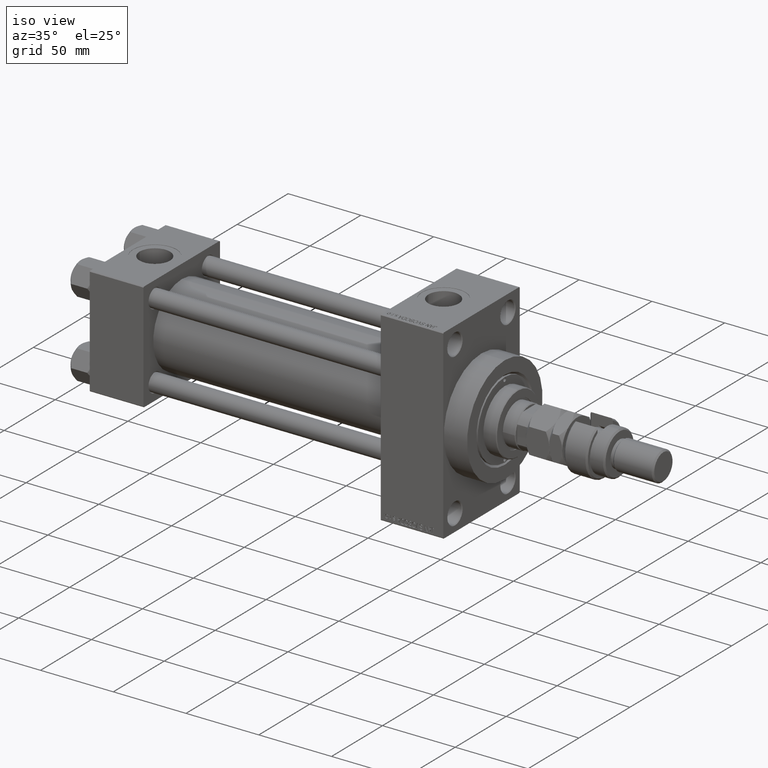
[diagram: clean part render]
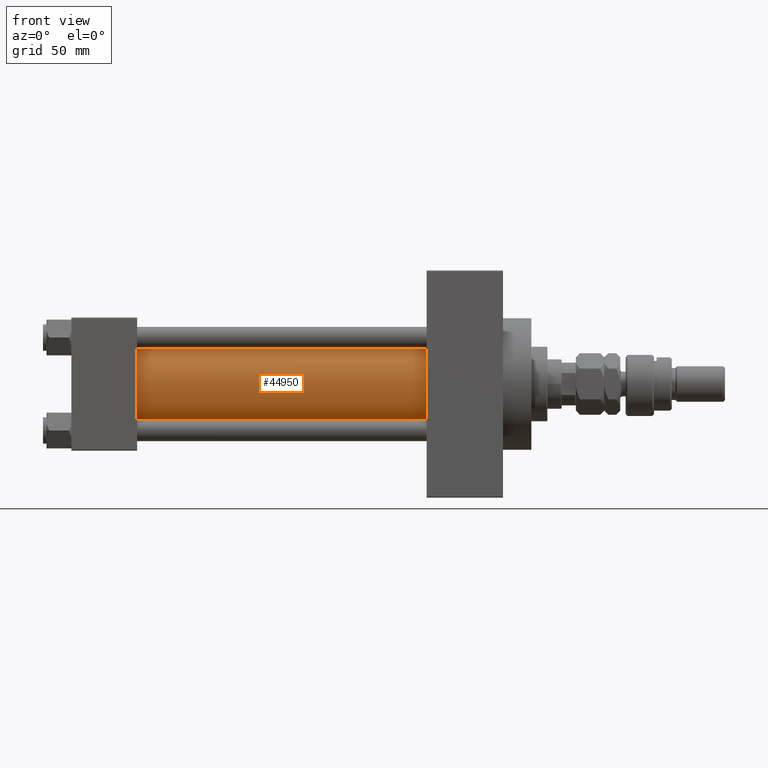
[diagram: tour spotlight — one face highlighted and labeled with its STEP entity id]
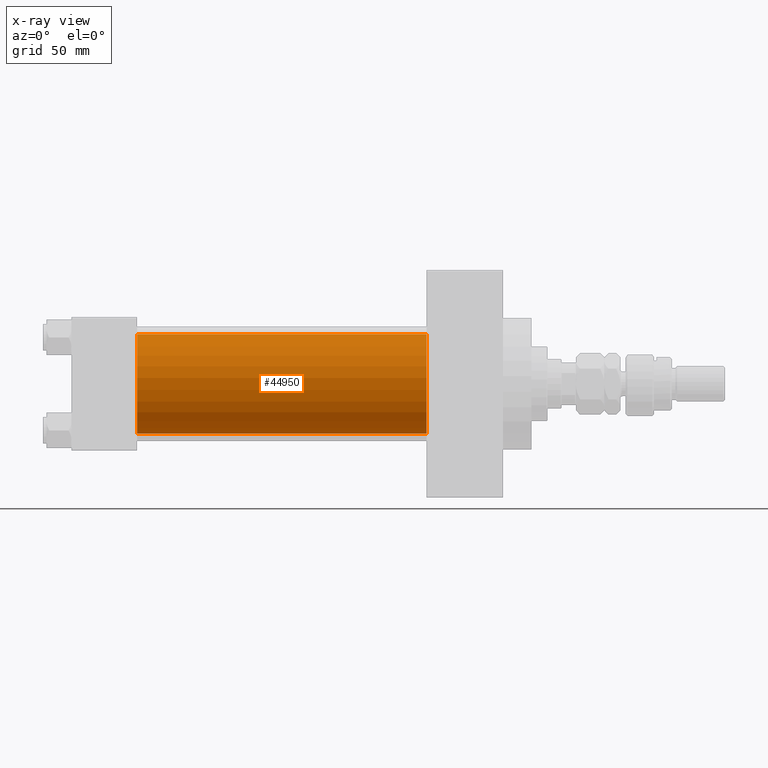
[diagram: x-ray of the same camera — body ghosted, this tour face saturated]
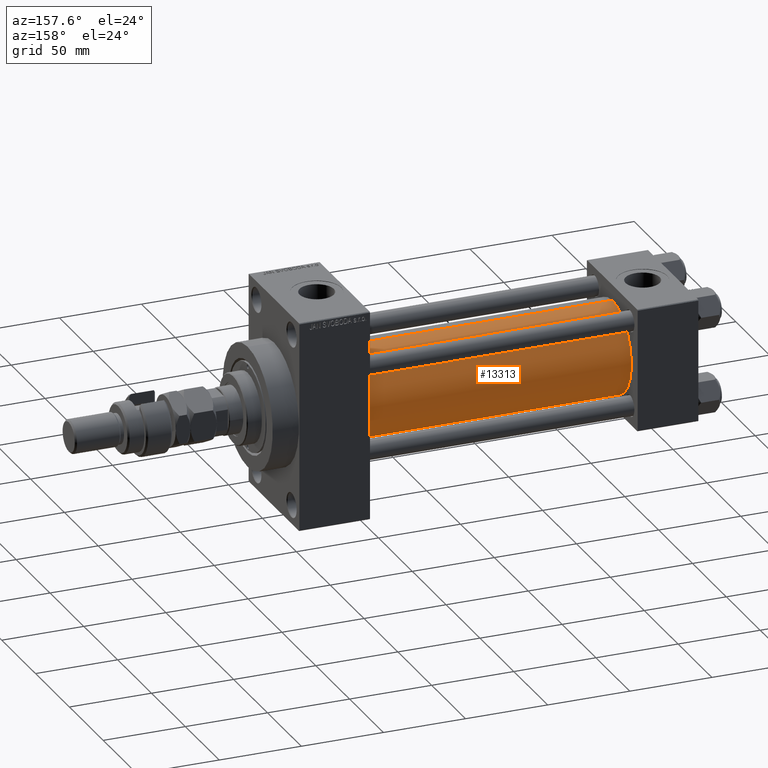
[diagram: tour spotlight — one face highlighted and labeled with its STEP entity id]
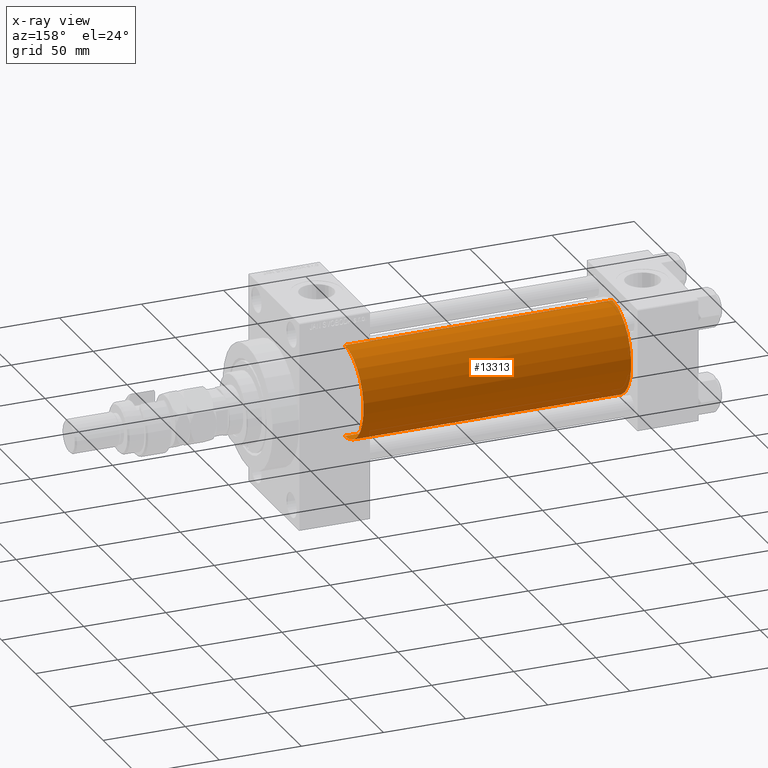
[diagram: x-ray of the same camera — body ghosted, this tour face saturated]
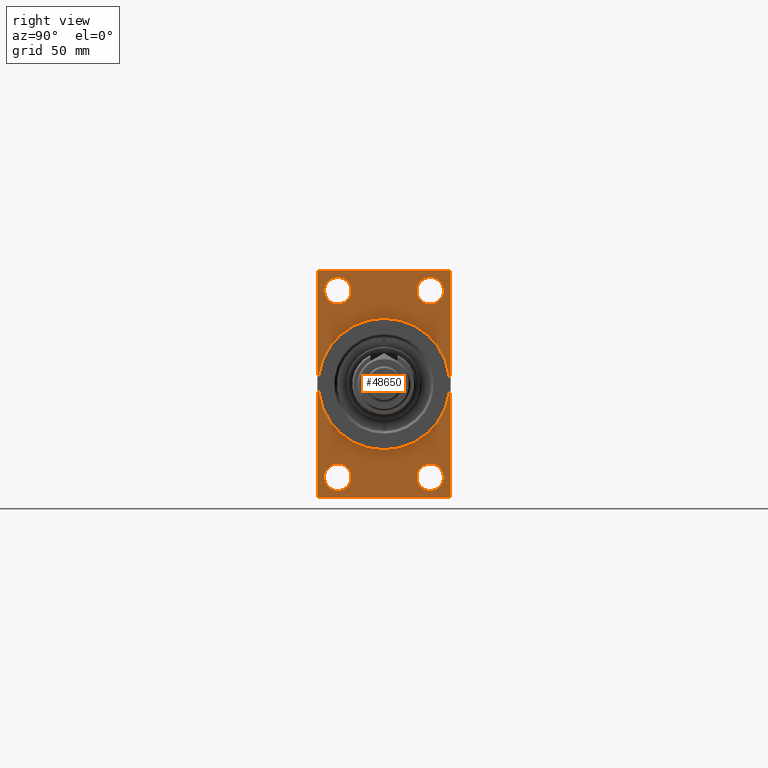
[diagram: tour spotlight — one face highlighted and labeled with its STEP entity id]
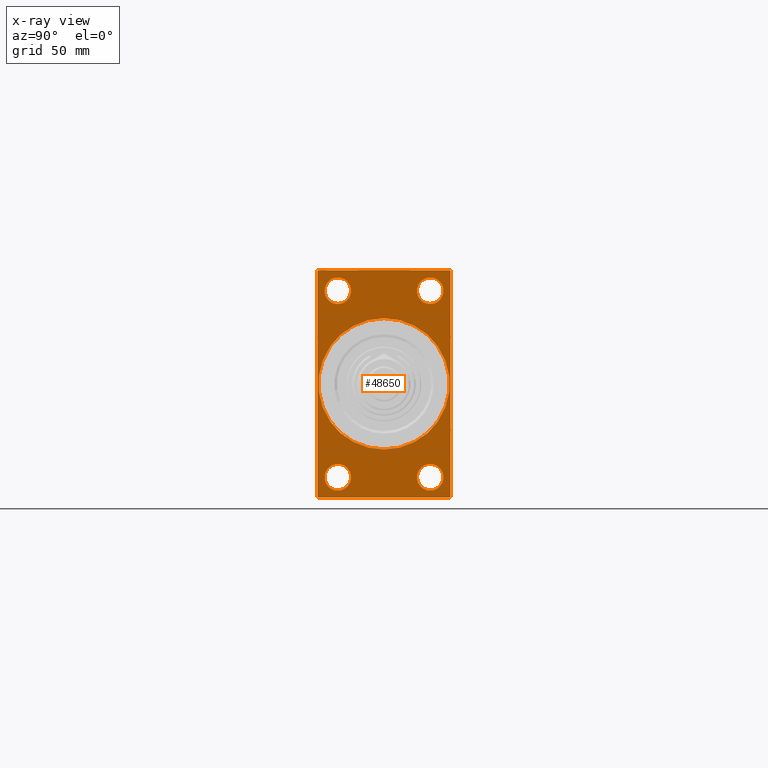
[diagram: x-ray of the same camera — body ghosted, this tour face saturated]
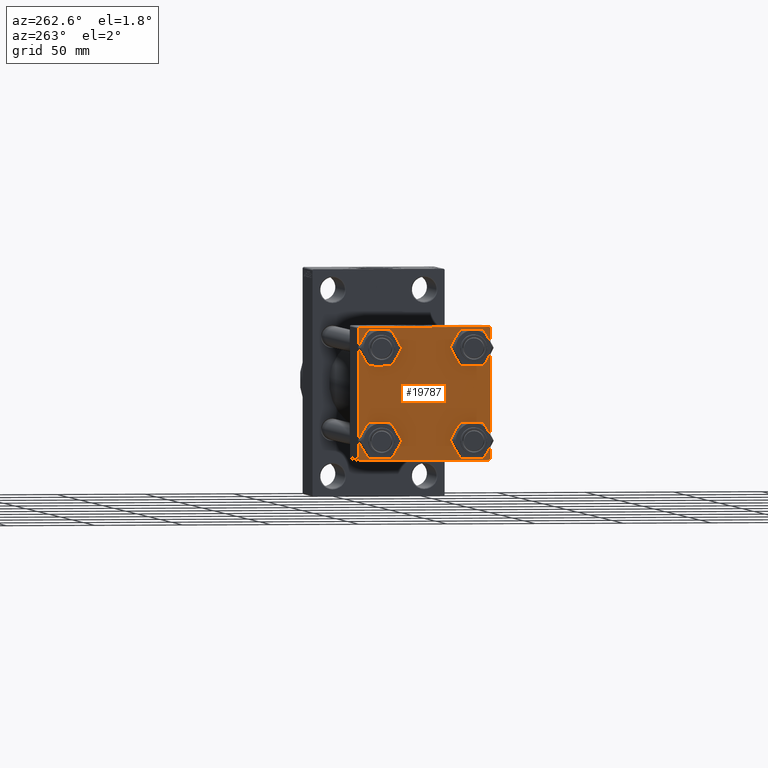
[diagram: tour spotlight — one face highlighted and labeled with its STEP entity id]
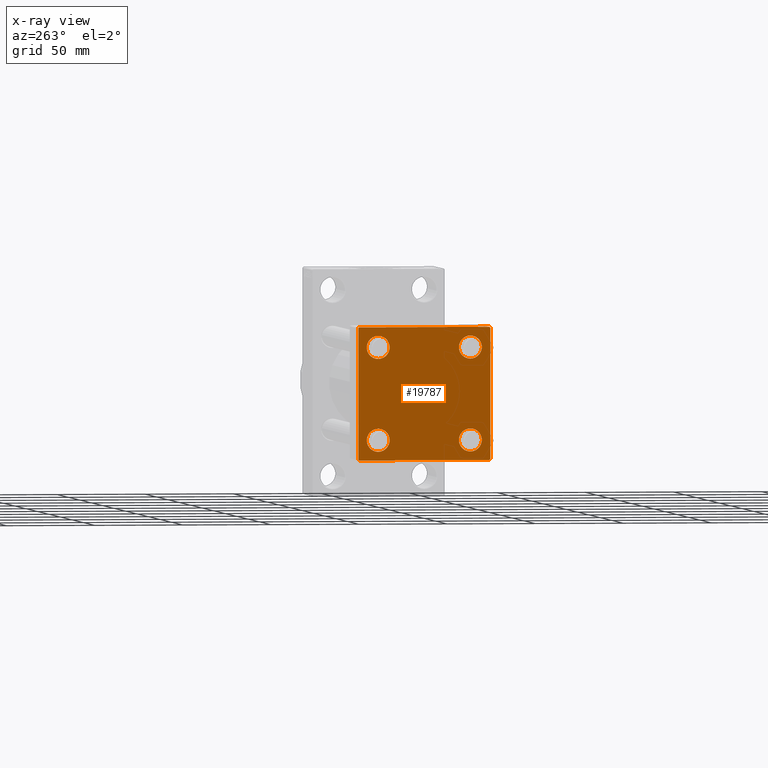
[diagram: x-ray of the same camera — body ghosted, this tour face saturated]
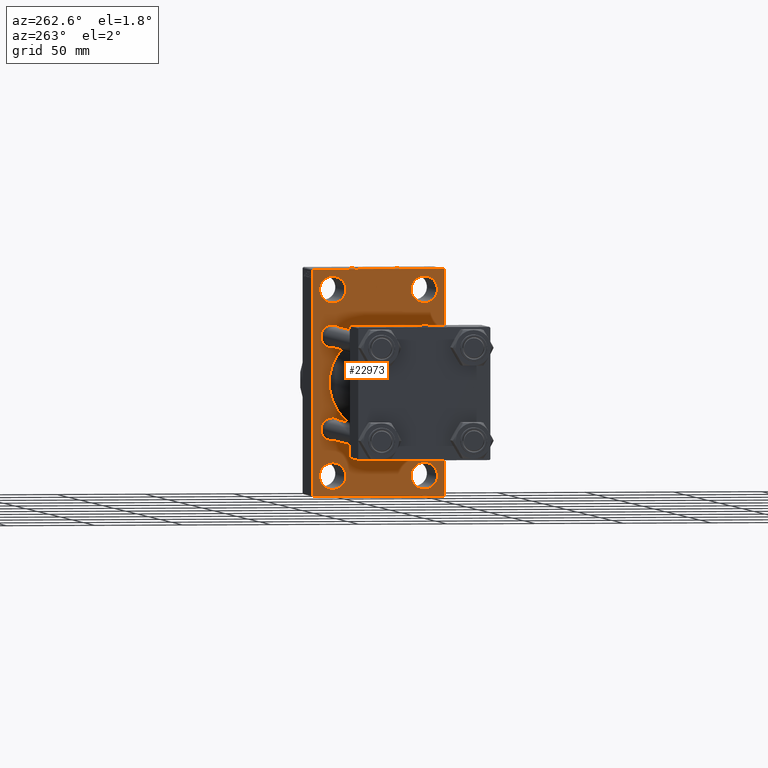
[diagram: tour spotlight — one face highlighted and labeled with its STEP entity id]
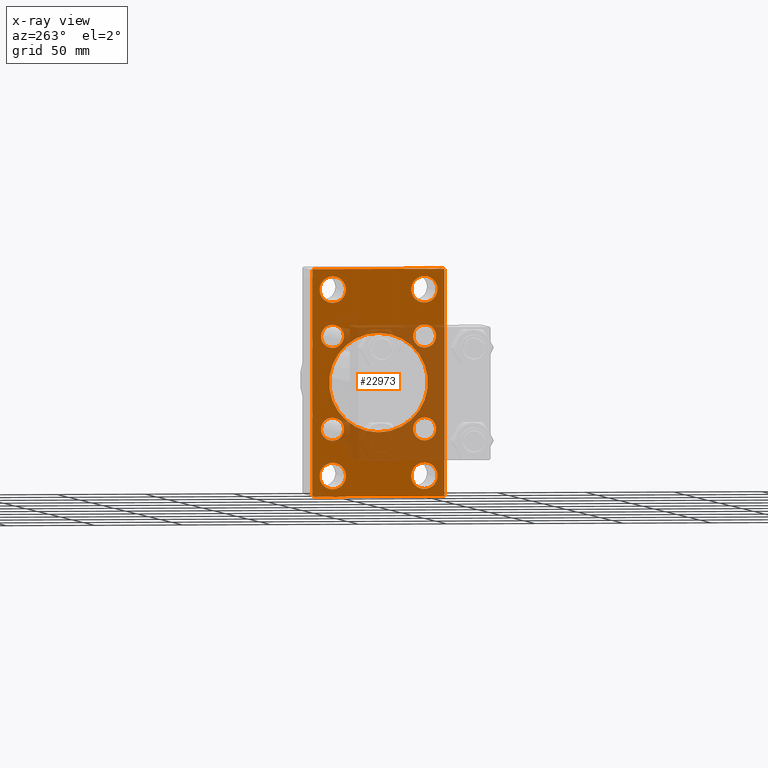
[diagram: x-ray of the same camera — body ghosted, this tour face saturated]
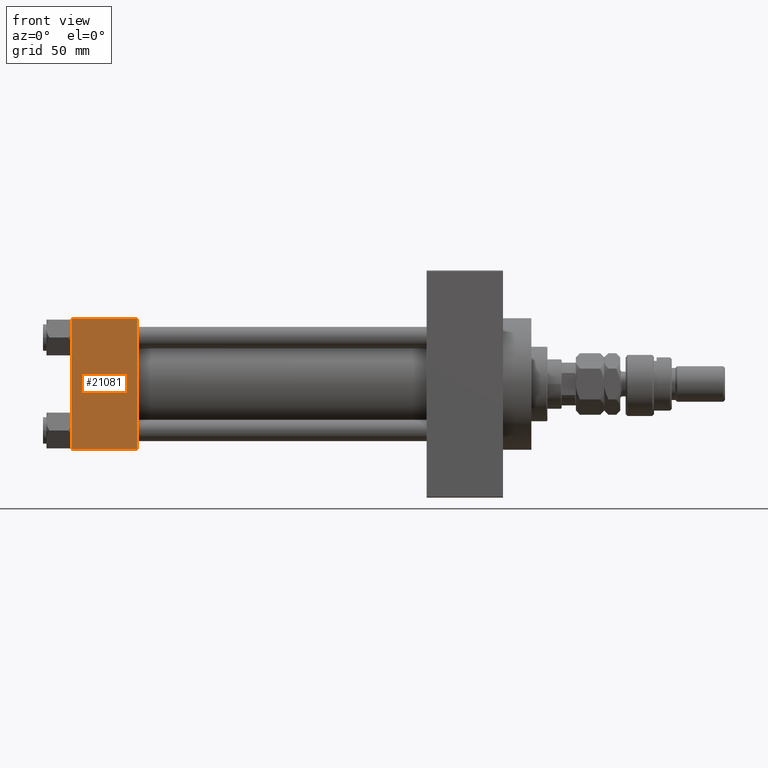
[diagram: tour spotlight — one face highlighted and labeled with its STEP entity id]
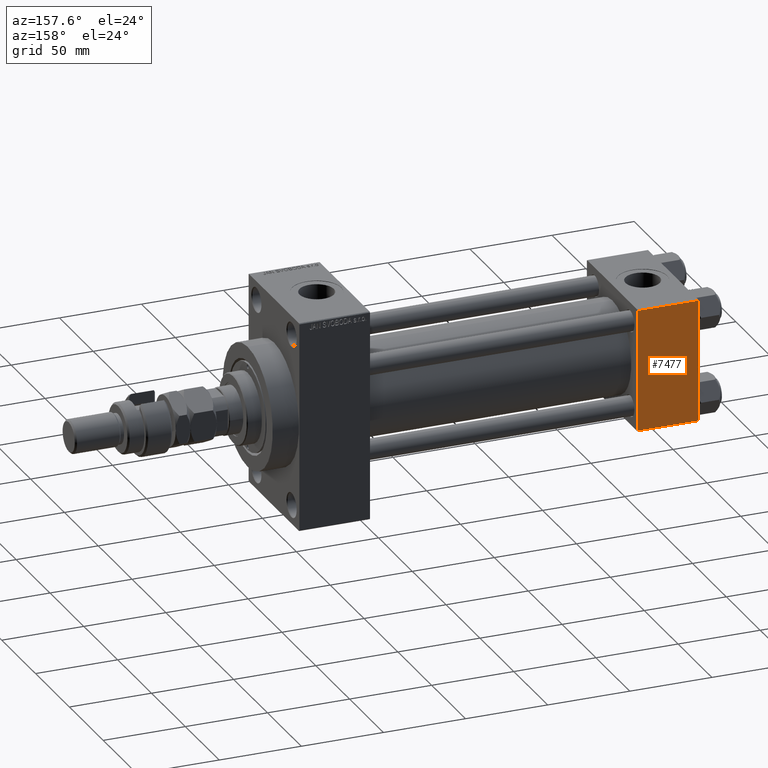
[diagram: tour spotlight — one face highlighted and labeled with its STEP entity id]
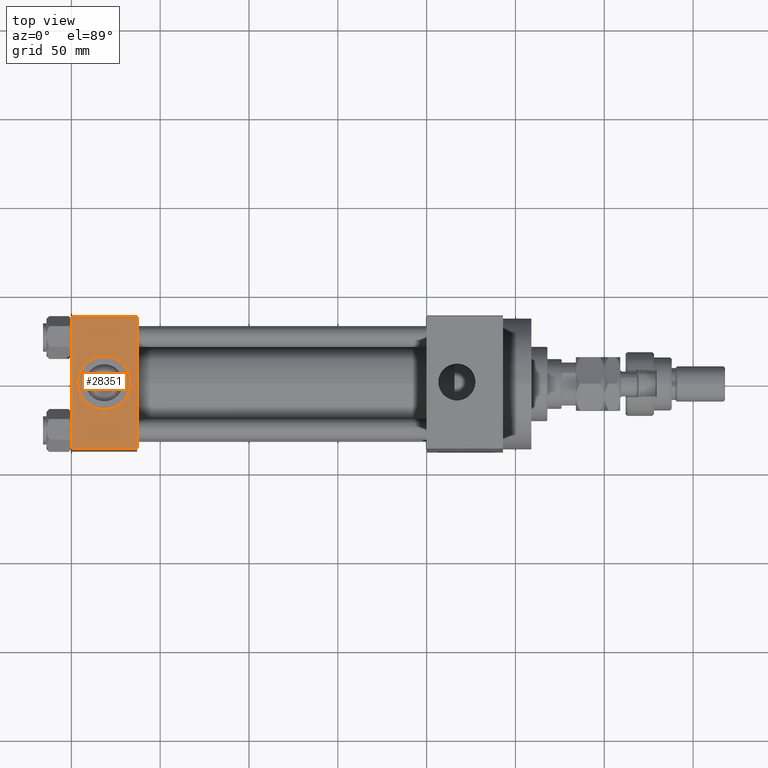
[diagram: tour spotlight — one face highlighted and labeled with its STEP entity id]
A machine part: a face-by-face anatomy tour. The part has 1196 B-rep faces; the first image is the clean iso view, then the 8 largest visible faces are spotlighted one at a time (largest first), each with its STEP entity span.

Face 1 — front view, entity #44950. An x-ray twin of the same camera follows (body ghosted, this face saturated) — the face is partly hidden behind the body. In plain terms, the highlighted cylindrical surface (partial cylindrical patch) has radius 28 mm, axis along (-1, -0, -0).
Definition (entity closure, byte-faithful):
#143 = DIRECTION ( 'NONE',  ( 0.000000000000000000, 0.000000000000000000, 1.000000000000000000 ) ) ;
#153 = CARTESIAN_POINT ( 'NONE',  ( 200.0000000000000000, -2.602085213965210642E-15, 28.00000000000000000 ) ) ;
#503 = AXIS2_PLACEMENT_3D ( 'NONE', #31374, #645, #143 ) ;
#645 = DIRECTION ( 'NONE',  ( 1.000000000000000000, -0.000000000000000000, 0.000000000000000000 ) ) ;
#1121 = EDGE_CURVE ( 'NONE', #32099, #12233, #23245, .T. ) ;
#4307 = CYLINDRICAL_SURFACE ( 'NONE', #25972, 28.00000000000000000 ) ;
#7414 = AXIS2_PLACEMENT_3D ( 'NONE', #24856, #16727, #44456 ) ;
#8608 = CARTESIAN_POINT ( 'NONE',  ( 200.0000000000000000, -2.602085213965210642E-15, 0.000000000000000000 ) ) ;
#9406 = ORIENTED_EDGE ( 'NONE', *, *, #41502, .F. ) ;
#9561 = LINE ( 'NONE', #44639, #12120 ) ;
#10765 = CARTESIAN_POINT ( 'NONE',  ( 200.0000000000000000, -2.602085213965210642E-15, 28.00000000000000000 ) ) ;
#12120 = VECTOR ( 'NONE', #25033, 1000.000000000000000 ) ;
#12233 = VERTEX_POINT ( 'NONE', #48418 ) ;
#14040 = CARTESIAN_POINT ( 'NONE',  ( 200.0000000000000000, 8.269258236473784371E-16, -28.00000000000000000 ) ) ;
#16727 = DIRECTION ( 'NONE',  ( 1.000000000000000000, 0.000000000000000000, 0.000000000000000000 ) ) ;
#19246 = DIRECTION ( 'NONE',  ( 0.000000000000000000, 0.000000000000000000, 1.000000000000000000 ) ) ;
#21167 = CIRCLE ( 'NONE', #7414, 28.00000000000000000 ) ;
#23245 = LINE ( 'NONE', #153, #49909 ) ;
#24856 = CARTESIAN_POINT ( 'NONE',  ( 200.0000000000000000, -2.602085213965210642E-15, 0.000000000000000000 ) ) ;
#25033 = DIRECTION ( 'NONE',  ( -1.000000000000000000, -0.000000000000000000, -0.000000000000000000 ) ) ;
#25972 = AXIS2_PLACEMENT_3D ( 'NONE', #8608, #38350, #19246 ) ;
#26927 = CARTESIAN_POINT ( 'NONE',  ( 37.00000000000000711, 8.269258236473784371E-16, -28.00000000000000000 ) ) ;
#27319 = DIRECTION ( 'NONE',  ( -1.000000000000000000, -0.000000000000000000, -0.000000000000000000 ) ) ;
#31297 = VERTEX_POINT ( 'NONE', #26927 ) ;
#31374 = CARTESIAN_POINT ( 'NONE',  ( 37.00000000000000711, -2.602085213965210642E-15, 0.000000000000000000 ) ) ;
#32099 = VERTEX_POINT ( 'NONE', #10765 ) ;
#34359 = EDGE_CURVE ( 'NONE', #12233, #31297, #40295, .T. ) ;
#38350 = DIRECTION ( 'NONE',  ( -1.000000000000000000, -0.000000000000000000, -0.000000000000000000 ) ) ;
#38632 = ORIENTED_EDGE ( 'NONE', *, *, #1121, .T. ) ;
#39640 = ORIENTED_EDGE ( 'NONE', *, *, #34359, .T. ) ;
#40295 = CIRCLE ( 'NONE', #503, 28.00000000000000000 ) ;
#41502 = EDGE_CURVE ( 'NONE', #49624, #31297, #9561, .T. ) ;
#41608 = ORIENTED_EDGE ( 'NONE', *, *, #49363, .F. ) ;
#42765 = EDGE_LOOP ( 'NONE', ( #9406, #41608, #38632, #39640 ) ) ;
#44456 = DIRECTION ( 'NONE',  ( 0.000000000000000000, 0.000000000000000000, -1.000000000000000000 ) ) ;
#44639 = CARTESIAN_POINT ( 'NONE',  ( 200.0000000000000000, 8.269258236473784371E-16, -28.00000000000000000 ) ) ;
#44950 = ADVANCED_FACE ( 'NONE', ( #50049 ), #4307, .T. ) ;
#48418 = CARTESIAN_POINT ( 'NONE',  ( 37.00000000000000711, -2.602085213965210642E-15, 28.00000000000000000 ) ) ;
#49363 = EDGE_CURVE ( 'NONE', #32099, #49624, #21167, .T. ) ;
#49624 = VERTEX_POINT ( 'NONE', #14040 ) ;
#49909 = VECTOR ( 'NONE', #27319, 1000.000000000000000 ) ;
#50049 = FACE_OUTER_BOUND ( 'NONE', #42765, .T. ) ;

Face 2 — auxiliary view, entity #13313. An x-ray twin of the same camera follows (body ghosted, this face saturated) — the face is partly hidden behind the body. In plain terms, the highlighted cylindrical surface (partial cylindrical patch) has radius 28 mm, axis along (-1, -0, -0).
Definition (entity closure, byte-faithful):
#153 = CARTESIAN_POINT ( 'NONE',  ( 200.0000000000000000, -2.602085213965210642E-15, 28.00000000000000000 ) ) ;
#1121 = EDGE_CURVE ( 'NONE', #32099, #12233, #23245, .T. ) ;
#2921 = DIRECTION ( 'NONE',  ( 0.000000000000000000, 0.000000000000000000, -1.000000000000000000 ) ) ;
#3556 = CARTESIAN_POINT ( 'NONE',  ( 37.00000000000000711, -2.602085213965210642E-15, 0.000000000000000000 ) ) ;
#7715 = EDGE_CURVE ( 'NONE', #49624, #32099, #10250, .T. ) ;
#9561 = LINE ( 'NONE', #44639, #12120 ) ;
#10042 = CARTESIAN_POINT ( 'NONE',  ( 200.0000000000000000, -2.602085213965210642E-15, 0.000000000000000000 ) ) ;
#10250 = CIRCLE ( 'NONE', #38664, 28.00000000000000000 ) ;
#10765 = CARTESIAN_POINT ( 'NONE',  ( 200.0000000000000000, -2.602085213965210642E-15, 28.00000000000000000 ) ) ;
#12120 = VECTOR ( 'NONE', #25033, 1000.000000000000000 ) ;
#12233 = VERTEX_POINT ( 'NONE', #48418 ) ;
#13313 = ADVANCED_FACE ( 'NONE', ( #44876 ), #13825, .T. ) ;
#13825 = CYLINDRICAL_SURFACE ( 'NONE', #46201, 28.00000000000000000 ) ;
#14040 = CARTESIAN_POINT ( 'NONE',  ( 200.0000000000000000, 8.269258236473784371E-16, -28.00000000000000000 ) ) ;
#19655 = CIRCLE ( 'NONE', #21276, 28.00000000000000000 ) ;
#21276 = AXIS2_PLACEMENT_3D ( 'NONE', #3556, #30716, #35289 ) ;
#23245 = LINE ( 'NONE', #153, #49909 ) ;
#23575 = EDGE_CURVE ( 'NONE', #31297, #12233, #19655, .T. ) ;
#25033 = DIRECTION ( 'NONE',  ( -1.000000000000000000, -0.000000000000000000, -0.000000000000000000 ) ) ;
#26757 = DIRECTION ( 'NONE',  ( 1.000000000000000000, 0.000000000000000000, 0.000000000000000000 ) ) ;
#26927 = CARTESIAN_POINT ( 'NONE',  ( 37.00000000000000711, 8.269258236473784371E-16, -28.00000000000000000 ) ) ;
#27319 = DIRECTION ( 'NONE',  ( -1.000000000000000000, -0.000000000000000000, -0.000000000000000000 ) ) ;
#28542 = EDGE_LOOP ( 'NONE', ( #32018, #36815, #45688, #47940 ) ) ;
#30716 = DIRECTION ( 'NONE',  ( 1.000000000000000000, -0.000000000000000000, 0.000000000000000000 ) ) ;
#31297 = VERTEX_POINT ( 'NONE', #26927 ) ;
#32018 = ORIENTED_EDGE ( 'NONE', *, *, #7715, .F. ) ;
#32099 = VERTEX_POINT ( 'NONE', #10765 ) ;
#35289 = DIRECTION ( 'NONE',  ( 0.000000000000000000, 0.000000000000000000, 1.000000000000000000 ) ) ;
#35548 = DIRECTION ( 'NONE',  ( -1.000000000000000000, -0.000000000000000000, -0.000000000000000000 ) ) ;
#36815 = ORIENTED_EDGE ( 'NONE', *, *, #41502, .T. ) ;
#37236 = DIRECTION ( 'NONE',  ( 0.000000000000000000, 0.000000000000000000, 1.000000000000000000 ) ) ;
#38664 = AXIS2_PLACEMENT_3D ( 'NONE', #42791, #26757, #2921 ) ;
#41502 = EDGE_CURVE ( 'NONE', #49624, #31297, #9561, .T. ) ;
#42791 = CARTESIAN_POINT ( 'NONE',  ( 200.0000000000000000, -2.602085213965210642E-15, 0.000000000000000000 ) ) ;
#44639 = CARTESIAN_POINT ( 'NONE',  ( 200.0000000000000000, 8.269258236473784371E-16, -28.00000000000000000 ) ) ;
#44876 = FACE_OUTER_BOUND ( 'NONE', #28542, .T. ) ;
#45688 = ORIENTED_EDGE ( 'NONE', *, *, #23575, .T. ) ;
#46201 = AXIS2_PLACEMENT_3D ( 'NONE', #10042, #35548, #37236 ) ;
#47940 = ORIENTED_EDGE ( 'NONE', *, *, #1121, .F. ) ;
#48418 = CARTESIAN_POINT ( 'NONE',  ( 37.00000000000000711, -2.602085213965210642E-15, 28.00000000000000000 ) ) ;
#49624 = VERTEX_POINT ( 'NONE', #14040 ) ;
#49909 = VECTOR ( 'NONE', #27319, 1000.000000000000000 ) ;

Face 3 — right view, entity #48650. An x-ray twin of the same camera follows (body ghosted, this face saturated) — the face is partly hidden behind the body. In plain terms, the highlighted planar face has unit normal (-1, 0, 0).
Definition (entity closure, byte-faithful):
#83 = CARTESIAN_POINT ( 'NONE',  ( 243.0000000000000000, -25.99999999999999645, -60.00000000000002842 ) ) ;
#409 = CARTESIAN_POINT ( 'NONE',  ( 243.0000000000000000, 0.000000000000000000, 0.000000000000000000 ) ) ;
#684 = CIRCLE ( 'NONE', #3912, 7.500000000000034639 ) ;
#943 = ORIENTED_EDGE ( 'NONE', *, *, #24145, .T. ) ;
#1343 = VECTOR ( 'NONE', #48449, 1000.000000000000000 ) ;
#1737 = EDGE_CURVE ( 'NONE', #8171, #4210, #6925, .T. ) ;
#2154 = VERTEX_POINT ( 'NONE', #21930 ) ;
#2880 = DIRECTION ( 'NONE',  ( -1.000000000000000000, 0.000000000000000000, -0.000000000000000000 ) ) ;
#3430 = VERTEX_POINT ( 'NONE', #16993 ) ;
#3458 = EDGE_CURVE ( 'NONE', #43724, #37003, #42593, .T. ) ;
#3563 = DIRECTION ( 'NONE',  ( -1.000000000000000000, 0.000000000000000000, -0.000000000000000000 ) ) ;
#3743 = ORIENTED_EDGE ( 'NONE', *, *, #12066, .T. ) ;
#3834 = DIRECTION ( 'NONE',  ( 0.000000000000000000, 0.000000000000000000, 1.000000000000000000 ) ) ;
#3912 = AXIS2_PLACEMENT_3D ( 'NONE', #26577, #34697, #22759 ) ;
#4210 = VERTEX_POINT ( 'NONE', #30665 ) ;
#4297 = CARTESIAN_POINT ( 'NONE',  ( 243.0000000000000000, 0.000000000000000000, 37.00000000000000000 ) ) ;
#5675 = VERTEX_POINT ( 'NONE', #83 ) ;
#6138 = CARTESIAN_POINT ( 'NONE',  ( 243.0000000000000000, 26.00000000000000000, -44.99999999999995737 ) ) ;
#6925 = CIRCLE ( 'NONE', #25548, 7.500000000000034639 ) ;
#7136 = DIRECTION ( 'NONE',  ( -0.000000000000000000, 0.7071067811865574537, 0.7071067811865376918 ) ) ;
#7162 = CIRCLE ( 'NONE', #32327, 7.500000000000034639 ) ;
#7249 = CIRCLE ( 'NONE', #16147, 7.500000000000034639 ) ;
#7613 = CARTESIAN_POINT ( 'NONE',  ( 243.0000000000000000, -25.99999999999999645, 52.50000000000000000 ) ) ;
#7831 = DIRECTION ( 'NONE',  ( 0.000000000000000000, 0.000000000000000000, 1.000000000000000000 ) ) ;
#8171 = VERTEX_POINT ( 'NONE', #33192 ) ;
#8274 = FACE_BOUND ( 'NONE', #31237, .T. ) ;
#8454 = ORIENTED_EDGE ( 'NONE', *, *, #18856, .F. ) ;
#9001 = ORIENTED_EDGE ( 'NONE', *, *, #13744, .T. ) ;
#9518 = CARTESIAN_POINT ( 'NONE',  ( 243.0000000000000000, 37.49999999999999289, -63.50000000000007105 ) ) ;
#9788 = AXIS2_PLACEMENT_3D ( 'NONE', #7613, #3563, #34023 ) ;
#9806 = VECTOR ( 'NONE', #37366, 1000.000000000000000 ) ;
#9887 = CARTESIAN_POINT ( 'NONE',  ( 243.0000000000000000, -37.49999999999999289, 63.50000000000000000 ) ) ;
#10691 = CARTESIAN_POINT ( 'NONE',  ( 243.0000000000000000, 37.49999999999999289, -63.50000000000007105 ) ) ;
#10866 = EDGE_CURVE ( 'NONE', #3430, #48164, #39574, .T. ) ;
#11498 = CARTESIAN_POINT ( 'NONE',  ( 243.0000000000000000, -37.00000000000002132, -64.00000000000001421 ) ) ;
#11596 = LINE ( 'NONE', #35493, #28488 ) ;
#12066 = EDGE_CURVE ( 'NONE', #48164, #3430, #684, .T. ) ;
#12386 = CARTESIAN_POINT ( 'NONE',  ( 243.0000000000000000, -37.00000000000002132, -64.00000000000001421 ) ) ;
#12725 = CARTESIAN_POINT ( 'NONE',  ( 243.0000000000000000, -25.99999999999999645, -44.99999999999995737 ) ) ;
#13744 = EDGE_CURVE ( 'NONE', #32657, #5675, #7249, .T. ) ;
#14833 = VERTEX_POINT ( 'NONE', #17496 ) ;
#15358 = FACE_BOUND ( 'NONE', #45716, .T. ) ;
#15912 = CARTESIAN_POINT ( 'NONE',  ( 243.0000000000000000, 0.000000000000000000, 0.000000000000000000 ) ) ;
#16147 = AXIS2_PLACEMENT_3D ( 'NONE', #50116, #30534, #33584 ) ;
#16838 = EDGE_LOOP ( 'NONE', ( #36715, #3743 ) ) ;
#16993 = CARTESIAN_POINT ( 'NONE',  ( 243.0000000000000000, 26.00000000000000000, -60.00000000000002842 ) ) ;
#17241 = CARTESIAN_POINT ( 'NONE',  ( 243.0000000000000000, 26.00000000000000000, 44.99999999999995737 ) ) ;
#17286 = DIRECTION ( 'NONE',  ( 0.000000000000000000, -1.000000000000000000, -1.850371707708594563E-16 ) ) ;
#17496 = CARTESIAN_POINT ( 'NONE',  ( 243.0000000000000000, -37.49999999999999289, -63.50000000000002842 ) ) ;
#17688 = CARTESIAN_POINT ( 'NONE',  ( 243.0000000000000000, 37.00000000000000000, 63.99999999999998579 ) ) ;
#17786 = VERTEX_POINT ( 'NONE', #17688 ) ;
#18190 = LINE ( 'NONE', #34715, #25983 ) ;
#18318 = DIRECTION ( 'NONE',  ( 0.000000000000000000, 0.000000000000000000, 1.000000000000000000 ) ) ;
#18385 = EDGE_CURVE ( 'NONE', #4210, #8171, #27625, .T. ) ;
#18692 = AXIS2_PLACEMENT_3D ( 'NONE', #409, #23755, #43357 ) ;
#18856 = EDGE_CURVE ( 'NONE', #2154, #35432, #18190, .T. ) ;
#19379 = ORIENTED_EDGE ( 'NONE', *, *, #34171, .T. ) ;
#19767 = ORIENTED_EDGE ( 'NONE', *, *, #45993, .T. ) ;
#20430 = VERTEX_POINT ( 'NONE', #46487 ) ;
#21357 = DIRECTION ( 'NONE',  ( -1.000000000000000000, 0.000000000000000000, -0.000000000000000000 ) ) ;
#21822 = LINE ( 'NONE', #22331, #9806 ) ;
#21930 = CARTESIAN_POINT ( 'NONE',  ( 243.0000000000000000, 37.50000000000000000, 63.49999999999998579 ) ) ;
#22331 = CARTESIAN_POINT ( 'NONE',  ( 243.0000000000000000, 37.50000000000000000, 63.99999999999998579 ) ) ;
#22759 = DIRECTION ( 'NONE',  ( 0.000000000000000000, 0.000000000000000000, 1.000000000000000000 ) ) ;
#23030 = CIRCLE ( 'NONE', #31169, 7.500000000000034639 ) ;
#23048 = CARTESIAN_POINT ( 'NONE',  ( 243.0000000000000000, -25.99999999999999645, -52.49999999999999289 ) ) ;
#23491 = DIRECTION ( 'NONE',  ( -1.000000000000000000, 0.000000000000000000, -0.000000000000000000 ) ) ;
#23755 = DIRECTION ( 'NONE',  ( -1.000000000000000000, 0.000000000000000000, -0.000000000000000000 ) ) ;
#24145 = EDGE_CURVE ( 'NONE', #20430, #35135, #37680, .T. ) ;
#24339 = DIRECTION ( 'NONE',  ( 0.000000000000000000, 0.7071067811865376918, -0.7071067811865573427 ) ) ;
#24585 = LINE ( 'NONE', #12386, #43761 ) ;
#24811 = ORIENTED_EDGE ( 'NONE', *, *, #3458, .F. ) ;
#25320 = ORIENTED_EDGE ( 'NONE', *, *, #45691, .T. ) ;
#25548 = AXIS2_PLACEMENT_3D ( 'NONE', #30941, #21357, #36895 ) ;
#25619 = DIRECTION ( 'NONE',  ( 0.000000000000000000, 0.000000000000000000, -1.000000000000000000 ) ) ;
#25979 = EDGE_CURVE ( 'NONE', #36172, #35222, #23030, .T. ) ;
#25983 = VECTOR ( 'NONE', #41876, 1000.000000000000000 ) ;
#26550 = CARTESIAN_POINT ( 'NONE',  ( 243.0000000000000000, 26.00000000000000000, 52.49999999999999289 ) ) ;
#26577 = CARTESIAN_POINT ( 'NONE',  ( 243.0000000000000000, 26.00000000000000000, -52.49999999999999289 ) ) ;
#27576 = FACE_BOUND ( 'NONE', #16838, .T. ) ;
#27625 = CIRCLE ( 'NONE', #9788, 7.500000000000034639 ) ;
#27687 = VECTOR ( 'NONE', #7136, 999.9999999999998863 ) ;
#27771 = EDGE_LOOP ( 'NONE', ( #42906, #9001 ) ) ;
#28488 = VECTOR ( 'NONE', #34461, 1000.000000000000114 ) ;
#28500 = LINE ( 'NONE', #32067, #44512 ) ;
#29027 = AXIS2_PLACEMENT_3D ( 'NONE', #48871, #2880, #18318 ) ;
#29149 = ORIENTED_EDGE ( 'NONE', *, *, #18385, .T. ) ;
#29186 = EDGE_LOOP ( 'NONE', ( #19379, #33845, #34113, #34287, #8454, #19767, #25320, #943 ) ) ;
#29609 = AXIS2_PLACEMENT_3D ( 'NONE', #23048, #42654, #7831 ) ;
#30534 = DIRECTION ( 'NONE',  ( -1.000000000000000000, 0.000000000000000000, -0.000000000000000000 ) ) ;
#30665 = CARTESIAN_POINT ( 'NONE',  ( 243.0000000000000000, -25.99999999999999645, 60.00000000000003553 ) ) ;
#30765 = CIRCLE ( 'NONE', #49463, 37.00000000000000000 ) ;
#30941 = CARTESIAN_POINT ( 'NONE',  ( 243.0000000000000000, -25.99999999999999645, 52.50000000000000000 ) ) ;
#31169 = AXIS2_PLACEMENT_3D ( 'NONE', #26550, #23491, #39274 ) ;
#31237 = EDGE_LOOP ( 'NONE', ( #44959, #34856 ) ) ;
#31613 = EDGE_CURVE ( 'NONE', #5675, #32657, #45056, .T. ) ;
#32067 = CARTESIAN_POINT ( 'NONE',  ( 243.0000000000000000, 37.49999999999999289, -64.00000000000000000 ) ) ;
#32327 = AXIS2_PLACEMENT_3D ( 'NONE', #46516, #38644, #3834 ) ;
#32657 = VERTEX_POINT ( 'NONE', #12725 ) ;
#33192 = CARTESIAN_POINT ( 'NONE',  ( 243.0000000000000000, -25.99999999999999645, 44.99999999999996447 ) ) ;
#33584 = DIRECTION ( 'NONE',  ( 0.000000000000000000, 0.000000000000000000, 1.000000000000000000 ) ) ;
#33845 = ORIENTED_EDGE ( 'NONE', *, *, #40406, .T. ) ;
#34023 = DIRECTION ( 'NONE',  ( 0.000000000000000000, 0.000000000000000000, 1.000000000000000000 ) ) ;
#34113 = ORIENTED_EDGE ( 'NONE', *, *, #38217, .F. ) ;
#34171 = EDGE_CURVE ( 'NONE', #35135, #14833, #44402, .T. ) ;
#34287 = ORIENTED_EDGE ( 'NONE', *, *, #49924, .T. ) ;
#34461 = DIRECTION ( 'NONE',  ( 0.000000000000000000, -0.7071067811865474617, 0.7071067811865474617 ) ) ;
#34697 = DIRECTION ( 'NONE',  ( -1.000000000000000000, 0.000000000000000000, -0.000000000000000000 ) ) ;
#34715 = CARTESIAN_POINT ( 'NONE',  ( 243.0000000000000000, 37.50000000000000000, 63.99999999999998579 ) ) ;
#34798 = LINE ( 'NONE', #10691, #27687 ) ;
#34856 = ORIENTED_EDGE ( 'NONE', *, *, #42188, .T. ) ;
#35135 = VERTEX_POINT ( 'NONE', #9887 ) ;
#35197 = FACE_OUTER_BOUND ( 'NONE', #29186, .T. ) ;
#35222 = VERTEX_POINT ( 'NONE', #46915 ) ;
#35432 = VERTEX_POINT ( 'NONE', #9518 ) ;
#35493 = CARTESIAN_POINT ( 'NONE',  ( 243.0000000000000000, 37.00000000000000000, 63.99999999999998579 ) ) ;
#35766 = CARTESIAN_POINT ( 'NONE',  ( 243.0000000000000000, -37.49999999999999289, 63.99999999999997158 ) ) ;
#36172 = VERTEX_POINT ( 'NONE', #17241 ) ;
#36326 = CARTESIAN_POINT ( 'NONE',  ( 243.0000000000000000, 0.000000000000000000, 0.000000000000000000 ) ) ;
#36715 = ORIENTED_EDGE ( 'NONE', *, *, #10866, .T. ) ;
#36772 = VECTOR ( 'NONE', #46058, 1000.000000000000000 ) ;
#36895 = DIRECTION ( 'NONE',  ( 0.000000000000000000, 0.000000000000000000, 1.000000000000000000 ) ) ;
#37003 = VERTEX_POINT ( 'NONE', #4297 ) ;
#37366 = DIRECTION ( 'NONE',  ( 0.000000000000000000, -1.000000000000000000, -1.850371707708594563E-16 ) ) ;
#37484 = ORIENTED_EDGE ( 'NONE', *, *, #41306, .F. ) ;
#37680 = LINE ( 'NONE', #37928, #36772 ) ;
#37928 = CARTESIAN_POINT ( 'NONE',  ( 243.0000000000000000, -37.49999999999999289, 63.50000000000000000 ) ) ;
#38217 = EDGE_CURVE ( 'NONE', #47546, #42592, #28500, .T. ) ;
#38644 = DIRECTION ( 'NONE',  ( -1.000000000000000000, 0.000000000000000000, -0.000000000000000000 ) ) ;
#38662 = CARTESIAN_POINT ( 'NONE',  ( 243.0000000000000000, 4.531193156845206793E-15, -37.00000000000000000 ) ) ;
#39032 = FACE_BOUND ( 'NONE', #27771, .T. ) ;
#39079 = DIRECTION ( 'NONE',  ( 0.000000000000000000, 0.000000000000000000, -1.000000000000000000 ) ) ;
#39274 = DIRECTION ( 'NONE',  ( 0.000000000000000000, 0.000000000000000000, 1.000000000000000000 ) ) ;
#39287 = FACE_BOUND ( 'NONE', #43007, .T. ) ;
#39574 = CIRCLE ( 'NONE', #29027, 7.500000000000034639 ) ;
#40406 = EDGE_CURVE ( 'NONE', #14833, #42592, #24585, .T. ) ;
#41306 = EDGE_CURVE ( 'NONE', #37003, #43724, #30765, .T. ) ;
#41876 = DIRECTION ( 'NONE',  ( 0.000000000000000000, -5.421010862427522170E-17, -1.000000000000000000 ) ) ;
#42188 = EDGE_CURVE ( 'NONE', #35222, #36172, #7162, .T. ) ;
#42592 = VERTEX_POINT ( 'NONE', #11498 ) ;
#42593 = CIRCLE ( 'NONE', #48242, 37.00000000000000000 ) ;
#42598 = PLANE ( 'NONE',  #18692 ) ;
#42654 = DIRECTION ( 'NONE',  ( -1.000000000000000000, 0.000000000000000000, -0.000000000000000000 ) ) ;
#42906 = ORIENTED_EDGE ( 'NONE', *, *, #31613, .T. ) ;
#43007 = EDGE_LOOP ( 'NONE', ( #44717, #29149 ) ) ;
#43357 = DIRECTION ( 'NONE',  ( -0.000000000000000000, 0.000000000000000000, 1.000000000000000000 ) ) ;
#43724 = VERTEX_POINT ( 'NONE', #38662 ) ;
#43761 = VECTOR ( 'NONE', #24339, 1000.000000000000114 ) ;
#44227 = DIRECTION ( 'NONE',  ( 1.000000000000000000, 0.000000000000000000, 0.000000000000000000 ) ) ;
#44402 = LINE ( 'NONE', #35766, #1343 ) ;
#44512 = VECTOR ( 'NONE', #17286, 1000.000000000000000 ) ;
#44717 = ORIENTED_EDGE ( 'NONE', *, *, #1737, .T. ) ;
#44959 = ORIENTED_EDGE ( 'NONE', *, *, #25979, .T. ) ;
#45056 = CIRCLE ( 'NONE', #29609, 7.500000000000034639 ) ;
#45691 = EDGE_CURVE ( 'NONE', #17786, #20430, #21822, .T. ) ;
#45716 = EDGE_LOOP ( 'NONE', ( #37484, #24811 ) ) ;
#45993 = EDGE_CURVE ( 'NONE', #2154, #17786, #11596, .T. ) ;
#46058 = DIRECTION ( 'NONE',  ( -0.000000000000000000, -0.7071067811865524577, -0.7071067811865426878 ) ) ;
#46487 = CARTESIAN_POINT ( 'NONE',  ( 243.0000000000000000, -37.00000000000001421, 63.99999999999997158 ) ) ;
#46516 = CARTESIAN_POINT ( 'NONE',  ( 243.0000000000000000, 26.00000000000000000, 52.49999999999999289 ) ) ;
#46915 = CARTESIAN_POINT ( 'NONE',  ( 243.0000000000000000, 26.00000000000000000, 60.00000000000002842 ) ) ;
#47213 = DIRECTION ( 'NONE',  ( 1.000000000000000000, 0.000000000000000000, 0.000000000000000000 ) ) ;
#47465 = CARTESIAN_POINT ( 'NONE',  ( 243.0000000000000000, 37.00000000000004974, -64.00000000000000000 ) ) ;
#47546 = VERTEX_POINT ( 'NONE', #47465 ) ;
#48164 = VERTEX_POINT ( 'NONE', #6138 ) ;
#48242 = AXIS2_PLACEMENT_3D ( 'NONE', #36326, #44227, #25619 ) ;
#48449 = DIRECTION ( 'NONE',  ( 0.000000000000000000, 0.000000000000000000, -1.000000000000000000 ) ) ;
#48650 = ADVANCED_FACE ( 'NONE', ( #39287, #39032, #27576, #8274, #15358, #35197 ), #42598, .F. ) ;
#48871 = CARTESIAN_POINT ( 'NONE',  ( 243.0000000000000000, 26.00000000000000000, -52.49999999999999289 ) ) ;
#49463 = AXIS2_PLACEMENT_3D ( 'NONE', #15912, #47213, #39079 ) ;
#49924 = EDGE_CURVE ( 'NONE', #47546, #35432, #34798, .T. ) ;
#50116 = CARTESIAN_POINT ( 'NONE',  ( 243.0000000000000000, -25.99999999999999645, -52.49999999999999289 ) ) ;

Face 4 — auxiliary view, entity #19787. An x-ray twin of the same camera follows (body ghosted, this face saturated) — the face is partly hidden behind the body. In plain terms, the highlighted planar face has unit normal (-1, 0, 0).
Definition (entity closure, byte-faithful):
#395 = DIRECTION ( 'NONE',  ( 0.000000000000000000, 0.000000000000000000, 1.000000000000000000 ) ) ;
#811 = CARTESIAN_POINT ( 'NONE',  ( 0.000000000000000000, -26.14999999999999147, -26.15000000000000924 ) ) ;
#1337 = CARTESIAN_POINT ( 'NONE',  ( 0.000000000000000000, 36.99999999999997868, -37.50000000000000000 ) ) ;
#2061 = AXIS2_PLACEMENT_3D ( 'NONE', #17140, #28836, #35981 ) ;
#3222 = VERTEX_POINT ( 'NONE', #40727 ) ;
#3238 = DIRECTION ( 'NONE',  ( 0.000000000000000000, 9.251858538542971581E-17, -1.000000000000000000 ) ) ;
#3491 = LINE ( 'NONE', #15895, #37424 ) ;
#3551 = ORIENTED_EDGE ( 'NONE', *, *, #34404, .T. ) ;
#3638 = ORIENTED_EDGE ( 'NONE', *, *, #41565, .T. ) ;
#3969 = EDGE_CURVE ( 'NONE', #19545, #11996, #49867, .T. ) ;
#5162 = AXIS2_PLACEMENT_3D ( 'NONE', #811, #23147, #20330 ) ;
#5230 = EDGE_LOOP ( 'NONE', ( #39755, #35058 ) ) ;
#5467 = EDGE_LOOP ( 'NONE', ( #33125, #29418 ) ) ;
#5777 = ORIENTED_EDGE ( 'NONE', *, *, #37207, .T. ) ;
#6288 = CARTESIAN_POINT ( 'NONE',  ( 0.000000000000000000, -37.00000000000000711, 37.49999999999999289 ) ) ;
#6881 = ORIENTED_EDGE ( 'NONE', *, *, #21944, .T. ) ;
#7005 = DIRECTION ( 'NONE',  ( 0.000000000000000000, 0.7071067811865474617, -0.7071067811865474617 ) ) ;
#7928 = DIRECTION ( 'NONE',  ( 0.000000000000000000, 0.000000000000000000, 1.000000000000000000 ) ) ;
#8594 = ORIENTED_EDGE ( 'NONE', *, *, #11804, .F. ) ;
#9495 = VERTEX_POINT ( 'NONE', #19501 ) ;
#9597 = DIRECTION ( 'NONE',  ( 0.000000000000000000, -1.000000000000000000, -9.251858538542971581E-17 ) ) ;
#10059 = FACE_BOUND ( 'NONE', #5230, .T. ) ;
#10680 = EDGE_CURVE ( 'NONE', #38281, #36825, #42815, .T. ) ;
#11033 = CARTESIAN_POINT ( 'NONE',  ( 0.000000000000000000, -37.50000000000000711, 36.99999999999999289 ) ) ;
#11472 = CIRCLE ( 'NONE', #18806, 6.500000000000015987 ) ;
#11804 = EDGE_CURVE ( 'NONE', #15099, #28983, #13880, .T. ) ;
#11811 = CARTESIAN_POINT ( 'NONE',  ( 0.000000000000000000, -26.14999999999999147, 26.15000000000000924 ) ) ;
#11839 = CARTESIAN_POINT ( 'NONE',  ( 0.000000000000000000, -37.50000000000000711, 37.49999999999999289 ) ) ;
#11969 = VERTEX_POINT ( 'NONE', #13380 ) ;
#11996 = VERTEX_POINT ( 'NONE', #46169 ) ;
#12194 = ORIENTED_EDGE ( 'NONE', *, *, #45232, .T. ) ;
#13084 = LINE ( 'NONE', #36230, #49434 ) ;
#13209 = EDGE_LOOP ( 'NONE', ( #5777, #36625, #48606, #12194, #34436, #47049, #8594, #3638 ) ) ;
#13380 = CARTESIAN_POINT ( 'NONE',  ( 0.000000000000000000, -26.14999999999999147, -19.64999999999999503 ) ) ;
#13880 = LINE ( 'NONE', #44674, #49360 ) ;
#15099 = VERTEX_POINT ( 'NONE', #24083 ) ;
#15348 = EDGE_CURVE ( 'NONE', #20909, #44167, #46672, .T. ) ;
#15794 = DIRECTION ( 'NONE',  ( 0.000000000000000000, 0.000000000000000000, 1.000000000000000000 ) ) ;
#15895 = CARTESIAN_POINT ( 'NONE',  ( 0.000000000000000000, -37.24999999999975842, -37.25000000000027001 ) ) ;
#16342 = EDGE_CURVE ( 'NONE', #29108, #38281, #13084, .T. ) ;
#16966 = DIRECTION ( 'NONE',  ( -0.000000000000000000, 0.7071067811865474617, 0.7071067811865474617 ) ) ;
#17140 = CARTESIAN_POINT ( 'NONE',  ( 0.000000000000000000, 26.14999999999999858, -26.15000000000000213 ) ) ;
#17163 = PLANE ( 'NONE',  #32520 ) ;
#17673 = CARTESIAN_POINT ( 'NONE',  ( 0.000000000000000000, 37.49999999999999289, 37.50000000000000000 ) ) ;
#17836 = CARTESIAN_POINT ( 'NONE',  ( 0.000000000000000000, 26.14999999999999858, 19.64999999999998437 ) ) ;
#18168 = LINE ( 'NONE', #17673, #28987 ) ;
#18325 = AXIS2_PLACEMENT_3D ( 'NONE', #11811, #19149, #27307 ) ;
#18806 = AXIS2_PLACEMENT_3D ( 'NONE', #48980, #37545, #36791 ) ;
#19149 = DIRECTION ( 'NONE',  ( 1.000000000000000000, -0.000000000000000000, 0.000000000000000000 ) ) ;
#19501 = CARTESIAN_POINT ( 'NONE',  ( 0.000000000000000000, 26.14999999999999858, -32.65000000000001990 ) ) ;
#19545 = VERTEX_POINT ( 'NONE', #47591 ) ;
#19787 = ADVANCED_FACE ( 'NONE', ( #43655, #10059, #37507, #41073, #48198 ), #17163, .T. ) ;
#19895 = DIRECTION ( 'NONE',  ( 0.000000000000000000, -1.000000000000000000, -9.251858538542972814E-17 ) ) ;
#20183 = VERTEX_POINT ( 'NONE', #17836 ) ;
#20330 = DIRECTION ( 'NONE',  ( 0.000000000000000000, 0.000000000000000000, 1.000000000000000000 ) ) ;
#20509 = CARTESIAN_POINT ( 'NONE',  ( 0.000000000000000000, 26.14999999999999858, -19.64999999999998792 ) ) ;
#20610 = EDGE_LOOP ( 'NONE', ( #6881, #44287 ) ) ;
#20769 = LINE ( 'NONE', #36797, #48896 ) ;
#20909 = VERTEX_POINT ( 'NONE', #11033 ) ;
#21944 = EDGE_CURVE ( 'NONE', #45009, #9495, #11472, .T. ) ;
#22399 = DIRECTION ( 'NONE',  ( 1.000000000000000000, -0.000000000000000000, 0.000000000000000000 ) ) ;
#22514 = VECTOR ( 'NONE', #19895, 1000.000000000000000 ) ;
#22696 = EDGE_CURVE ( 'NONE', #20909, #28983, #20769, .T. ) ;
#22715 = CARTESIAN_POINT ( 'NONE',  ( 0.000000000000000000, 37.49999999999999289, -37.50000000000000000 ) ) ;
#23015 = DIRECTION ( 'NONE',  ( 0.000000000000000000, -0.7071067811865524577, 0.7071067811865426878 ) ) ;
#23147 = DIRECTION ( 'NONE',  ( 1.000000000000000000, -0.000000000000000000, 0.000000000000000000 ) ) ;
#24083 = CARTESIAN_POINT ( 'NONE',  ( 0.000000000000000000, 36.99999999999999289, 37.50000000000000000 ) ) ;
#24207 = EDGE_CURVE ( 'NONE', #3222, #11969, #46536, .T. ) ;
#24379 = EDGE_LOOP ( 'NONE', ( #35108, #3551 ) ) ;
#24783 = CARTESIAN_POINT ( 'NONE',  ( 0.000000000000000000, -26.14999999999999147, -26.15000000000000924 ) ) ;
#25511 = AXIS2_PLACEMENT_3D ( 'NONE', #42003, #22399, #7928 ) ;
#26037 = EDGE_CURVE ( 'NONE', #20183, #48024, #45786, .T. ) ;
#26326 = CARTESIAN_POINT ( 'NONE',  ( 0.000000000000000000, 37.49999999999999289, -36.99999999999998579 ) ) ;
#26494 = CARTESIAN_POINT ( 'NONE',  ( 0.000000000000000000, 26.14999999999999858, 32.65000000000002700 ) ) ;
#27246 = DIRECTION ( 'NONE',  ( 1.000000000000000000, -0.000000000000000000, 0.000000000000000000 ) ) ;
#27307 = DIRECTION ( 'NONE',  ( 0.000000000000000000, 0.000000000000000000, 1.000000000000000000 ) ) ;
#28836 = DIRECTION ( 'NONE',  ( 1.000000000000000000, -0.000000000000000000, 0.000000000000000000 ) ) ;
#28983 = VERTEX_POINT ( 'NONE', #6288 ) ;
#28987 = VECTOR ( 'NONE', #33689, 1000.000000000000000 ) ;
#29108 = VERTEX_POINT ( 'NONE', #26326 ) ;
#29256 = EDGE_CURVE ( 'NONE', #9495, #45009, #38471, .T. ) ;
#29418 = ORIENTED_EDGE ( 'NONE', *, *, #26037, .T. ) ;
#29619 = DIRECTION ( 'NONE',  ( -1.000000000000000000, 0.000000000000000000, -0.000000000000000000 ) ) ;
#30613 = LINE ( 'NONE', #49450, #40539 ) ;
#30616 = CARTESIAN_POINT ( 'NONE',  ( 0.000000000000000000, 26.14999999999999858, 26.15000000000000213 ) ) ;
#32181 = CIRCLE ( 'NONE', #42756, 6.500000000000023093 ) ;
#32520 = AXIS2_PLACEMENT_3D ( 'NONE', #48444, #29619, #44640 ) ;
#32544 = AXIS2_PLACEMENT_3D ( 'NONE', #24783, #44386, #44628 ) ;
#33125 = ORIENTED_EDGE ( 'NONE', *, *, #34742, .T. ) ;
#33689 = DIRECTION ( 'NONE',  ( 0.000000000000000000, 0.000000000000000000, -1.000000000000000000 ) ) ;
#34383 = AXIS2_PLACEMENT_3D ( 'NONE', #30616, #38505, #395 ) ;
#34404 = EDGE_CURVE ( 'NONE', #11996, #19545, #47605, .T. ) ;
#34436 = ORIENTED_EDGE ( 'NONE', *, *, #15348, .F. ) ;
#34742 = EDGE_CURVE ( 'NONE', #48024, #20183, #32181, .T. ) ;
#35058 = ORIENTED_EDGE ( 'NONE', *, *, #24207, .T. ) ;
#35108 = ORIENTED_EDGE ( 'NONE', *, *, #3969, .T. ) ;
#35981 = DIRECTION ( 'NONE',  ( 0.000000000000000000, 0.000000000000000000, 1.000000000000000000 ) ) ;
#36230 = CARTESIAN_POINT ( 'NONE',  ( 0.000000000000000000, 37.24999999999998579, -37.24999999999998579 ) ) ;
#36625 = ORIENTED_EDGE ( 'NONE', *, *, #16342, .T. ) ;
#36791 = DIRECTION ( 'NONE',  ( 0.000000000000000000, 0.000000000000000000, 1.000000000000000000 ) ) ;
#36797 = CARTESIAN_POINT ( 'NONE',  ( -0.000000000000000000, -37.25000000000000000, 37.25000000000000000 ) ) ;
#36825 = VERTEX_POINT ( 'NONE', #43747 ) ;
#37207 = EDGE_CURVE ( 'NONE', #45674, #29108, #18168, .T. ) ;
#37424 = VECTOR ( 'NONE', #23015, 1000.000000000000000 ) ;
#37507 = FACE_BOUND ( 'NONE', #20610, .T. ) ;
#37545 = DIRECTION ( 'NONE',  ( 1.000000000000000000, -0.000000000000000000, 0.000000000000000000 ) ) ;
#38281 = VERTEX_POINT ( 'NONE', #1337 ) ;
#38471 = CIRCLE ( 'NONE', #2061, 6.500000000000015987 ) ;
#38505 = DIRECTION ( 'NONE',  ( 1.000000000000000000, -0.000000000000000000, 0.000000000000000000 ) ) ;
#39755 = ORIENTED_EDGE ( 'NONE', *, *, #46021, .T. ) ;
#40539 = VECTOR ( 'NONE', #7005, 1000.000000000000114 ) ;
#40571 = CIRCLE ( 'NONE', #32544, 6.500000000000015987 ) ;
#40727 = CARTESIAN_POINT ( 'NONE',  ( 0.000000000000000000, -26.14999999999999147, -32.65000000000002700 ) ) ;
#41073 = FACE_BOUND ( 'NONE', #5467, .T. ) ;
#41565 = EDGE_CURVE ( 'NONE', #15099, #45674, #30613, .T. ) ;
#42003 = CARTESIAN_POINT ( 'NONE',  ( 0.000000000000000000, -26.14999999999999147, 26.15000000000000924 ) ) ;
#42756 = AXIS2_PLACEMENT_3D ( 'NONE', #46581, #27246, #15794 ) ;
#42815 = LINE ( 'NONE', #22715, #22514 ) ;
#43655 = FACE_BOUND ( 'NONE', #24379, .T. ) ;
#43747 = CARTESIAN_POINT ( 'NONE',  ( 0.000000000000000000, -37.00000000000002132, -37.50000000000000711 ) ) ;
#44167 = VERTEX_POINT ( 'NONE', #46355 ) ;
#44287 = ORIENTED_EDGE ( 'NONE', *, *, #29256, .T. ) ;
#44386 = DIRECTION ( 'NONE',  ( 1.000000000000000000, -0.000000000000000000, 0.000000000000000000 ) ) ;
#44628 = DIRECTION ( 'NONE',  ( 0.000000000000000000, 0.000000000000000000, 1.000000000000000000 ) ) ;
#44640 = DIRECTION ( 'NONE',  ( -0.000000000000000000, 0.000000000000000000, 1.000000000000000000 ) ) ;
#44674 = CARTESIAN_POINT ( 'NONE',  ( 0.000000000000000000, 37.49999999999999289, 37.50000000000000000 ) ) ;
#45009 = VERTEX_POINT ( 'NONE', #20509 ) ;
#45232 = EDGE_CURVE ( 'NONE', #36825, #44167, #3491, .T. ) ;
#45341 = VECTOR ( 'NONE', #3238, 1000.000000000000000 ) ;
#45674 = VERTEX_POINT ( 'NONE', #45753 ) ;
#45753 = CARTESIAN_POINT ( 'NONE',  ( 0.000000000000000000, 37.49999999999999289, 37.00000000000000000 ) ) ;
#45786 = CIRCLE ( 'NONE', #34383, 6.500000000000023093 ) ;
#46021 = EDGE_CURVE ( 'NONE', #11969, #3222, #40571, .T. ) ;
#46169 = CARTESIAN_POINT ( 'NONE',  ( 0.000000000000000000, -26.14999999999999147, 19.64999999999999147 ) ) ;
#46355 = CARTESIAN_POINT ( 'NONE',  ( 0.000000000000000000, -37.50000000000000000, -37.00000000000003553 ) ) ;
#46536 = CIRCLE ( 'NONE', #5162, 6.500000000000015987 ) ;
#46581 = CARTESIAN_POINT ( 'NONE',  ( 0.000000000000000000, 26.14999999999999858, 26.15000000000000213 ) ) ;
#46672 = LINE ( 'NONE', #11839, #45341 ) ;
#47049 = ORIENTED_EDGE ( 'NONE', *, *, #22696, .T. ) ;
#47438 = DIRECTION ( 'NONE',  ( -0.000000000000000000, -0.7071067811865474617, -0.7071067811865474617 ) ) ;
#47591 = CARTESIAN_POINT ( 'NONE',  ( 0.000000000000000000, -26.14999999999999147, 32.65000000000003411 ) ) ;
#47605 = CIRCLE ( 'NONE', #18325, 6.500000000000023093 ) ;
#48024 = VERTEX_POINT ( 'NONE', #26494 ) ;
#48198 = FACE_OUTER_BOUND ( 'NONE', #13209, .T. ) ;
#48444 = CARTESIAN_POINT ( 'NONE',  ( 0.000000000000000000, 0.000000000000000000, 0.000000000000000000 ) ) ;
#48606 = ORIENTED_EDGE ( 'NONE', *, *, #10680, .T. ) ;
#48896 = VECTOR ( 'NONE', #16966, 1000.000000000000114 ) ;
#48980 = CARTESIAN_POINT ( 'NONE',  ( 0.000000000000000000, 26.14999999999999858, -26.15000000000000213 ) ) ;
#49360 = VECTOR ( 'NONE', #9597, 1000.000000000000000 ) ;
#49434 = VECTOR ( 'NONE', #47438, 1000.000000000000114 ) ;
#49450 = CARTESIAN_POINT ( 'NONE',  ( 0.000000000000000000, 37.24999999999999289, 37.24999999999999289 ) ) ;
#49867 = CIRCLE ( 'NONE', #25511, 6.500000000000023093 ) ;

Face 5 — auxiliary view, entity #22973. An x-ray twin of the same camera follows (body ghosted, this face saturated) — the face is partly hidden behind the body. In plain terms, the highlighted planar face has unit normal (-1, 0, 0).
Definition (entity closure, byte-faithful):
#21 = LINE ( 'NONE', #43221, #27430 ) ;
#142 = EDGE_CURVE ( 'NONE', #21229, #46138, #2838, .T. ) ;
#527 = DIRECTION ( 'NONE',  ( 0.000000000000000000, -1.000000000000000000, -1.850371707708594563E-16 ) ) ;
#836 = ORIENTED_EDGE ( 'NONE', *, *, #7715, .T. ) ;
#863 = DIRECTION ( 'NONE',  ( 0.000000000000000000, 0.000000000000000000, 1.000000000000000000 ) ) ;
#909 = VERTEX_POINT ( 'NONE', #43668 ) ;
#1084 = DIRECTION ( 'NONE',  ( 0.000000000000000000, -5.421010862427522170E-17, -1.000000000000000000 ) ) ;
#1666 = DIRECTION ( 'NONE',  ( 1.000000000000000000, -0.000000000000000000, 0.000000000000000000 ) ) ;
#1718 = LINE ( 'NONE', #9333, #30486 ) ;
#2209 = VERTEX_POINT ( 'NONE', #22935 ) ;
#2233 = VERTEX_POINT ( 'NONE', #38466 ) ;
#2572 = EDGE_LOOP ( 'NONE', ( #4963, #36490 ) ) ;
#2651 = DIRECTION ( 'NONE',  ( 1.000000000000000000, -0.000000000000000000, 0.000000000000000000 ) ) ;
#2689 = CARTESIAN_POINT ( 'NONE',  ( 200.0000000000000000, -26.14999999999999147, 32.65000000000001990 ) ) ;
#2699 = DIRECTION ( 'NONE',  ( 0.000000000000000000, 0.000000000000000000, 1.000000000000000000 ) ) ;
#2748 = FACE_OUTER_BOUND ( 'NONE', #7176, .T. ) ;
#2838 = CIRCLE ( 'NONE', #10107, 6.500000000000008882 ) ;
#2921 = DIRECTION ( 'NONE',  ( 0.000000000000000000, 0.000000000000000000, -1.000000000000000000 ) ) ;
#2998 = FACE_BOUND ( 'NONE', #23640, .T. ) ;
#3390 = DIRECTION ( 'NONE',  ( 0.000000000000000000, -0.7071067811865376918, 0.7071067811865573427 ) ) ;
#3663 = CIRCLE ( 'NONE', #40195, 6.500000000000008882 ) ;
#3801 = EDGE_LOOP ( 'NONE', ( #14823, #17897 ) ) ;
#4036 = VERTEX_POINT ( 'NONE', #28240 ) ;
#4103 = CARTESIAN_POINT ( 'NONE',  ( 200.0000000000000000, -25.99999999999999645, -52.49999999999999289 ) ) ;
#4171 = EDGE_CURVE ( 'NONE', #25750, #23682, #3663, .T. ) ;
#4612 = VECTOR ( 'NONE', #527, 1000.000000000000000 ) ;
#4963 = ORIENTED_EDGE ( 'NONE', *, *, #49181, .T. ) ;
#5024 = CARTESIAN_POINT ( 'NONE',  ( 200.0000000000000000, 26.14999999999999858, -32.65000000000001279 ) ) ;
#5104 = LINE ( 'NONE', #35846, #4612 ) ;
#5582 = EDGE_CURVE ( 'NONE', #41081, #41079, #33360, .T. ) ;
#5594 = CARTESIAN_POINT ( 'NONE',  ( 200.0000000000000000, -37.00000000000001421, 63.99999999999997158 ) ) ;
#6375 = EDGE_CURVE ( 'NONE', #909, #17178, #10214, .T. ) ;
#6745 = EDGE_CURVE ( 'NONE', #2209, #42752, #15038, .T. ) ;
#6764 = CARTESIAN_POINT ( 'NONE',  ( 200.0000000000000000, 37.00000000000000000, 63.99999999999998579 ) ) ;
#6823 = VERTEX_POINT ( 'NONE', #5594 ) ;
#7176 = EDGE_LOOP ( 'NONE', ( #29569, #34703, #23909, #28634, #44572, #21436, #10070, #44778 ) ) ;
#7233 = VERTEX_POINT ( 'NONE', #36269 ) ;
#7240 = EDGE_CURVE ( 'NONE', #42386, #29876, #1718, .T. ) ;
#7414 = AXIS2_PLACEMENT_3D ( 'NONE', #24856, #16727, #44456 ) ;
#7715 = EDGE_CURVE ( 'NONE', #49624, #32099, #10250, .T. ) ;
#7803 = DIRECTION ( 'NONE',  ( -1.000000000000000000, 0.000000000000000000, -0.000000000000000000 ) ) ;
#7855 = DIRECTION ( 'NONE',  ( 1.000000000000000000, -0.000000000000000000, 0.000000000000000000 ) ) ;
#7877 = CARTESIAN_POINT ( 'NONE',  ( 200.0000000000000000, -26.14999999999999147, -26.15000000000000924 ) ) ;
#8104 = DIRECTION ( 'NONE',  ( 1.000000000000000000, -0.000000000000000000, 0.000000000000000000 ) ) ;
#8394 = EDGE_LOOP ( 'NONE', ( #32193, #9940 ) ) ;
#8872 = DIRECTION ( 'NONE',  ( 0.000000000000000000, 0.000000000000000000, 1.000000000000000000 ) ) ;
#8878 = DIRECTION ( 'NONE',  ( 1.000000000000000000, -0.000000000000000000, 0.000000000000000000 ) ) ;
#9333 = CARTESIAN_POINT ( 'NONE',  ( 200.0000000000000000, 50.49999999999998579, 50.49999999999998579 ) ) ;
#9343 = VECTOR ( 'NONE', #42409, 999.9999999999998863 ) ;
#9498 = CARTESIAN_POINT ( 'NONE',  ( 200.0000000000000000, 26.14999999999999858, -19.64999999999999503 ) ) ;
#9940 = ORIENTED_EDGE ( 'NONE', *, *, #11682, .T. ) ;
#10070 = ORIENTED_EDGE ( 'NONE', *, *, #41943, .T. ) ;
#10107 = AXIS2_PLACEMENT_3D ( 'NONE', #24208, #35660, #12512 ) ;
#10214 = CIRCLE ( 'NONE', #20739, 7.500000000000007105 ) ;
#10250 = CIRCLE ( 'NONE', #38664, 28.00000000000000000 ) ;
#10459 = EDGE_LOOP ( 'NONE', ( #30289, #48230 ) ) ;
#10494 = EDGE_CURVE ( 'NONE', #19278, #41280, #48489, .T. ) ;
#10760 = DIRECTION ( 'NONE',  ( 0.000000000000000000, 0.000000000000000000, 1.000000000000000000 ) ) ;
#10765 = CARTESIAN_POINT ( 'NONE',  ( 200.0000000000000000, -2.602085213965210642E-15, 28.00000000000000000 ) ) ;
#10881 = ORIENTED_EDGE ( 'NONE', *, *, #29541, .T. ) ;
#11110 = AXIS2_PLACEMENT_3D ( 'NONE', #43703, #39376, #8872 ) ;
#11200 = DIRECTION ( 'NONE',  ( 0.000000000000000000, 0.000000000000000000, 1.000000000000000000 ) ) ;
#11215 = AXIS2_PLACEMENT_3D ( 'NONE', #30880, #14615, #19420 ) ;
#11315 = CARTESIAN_POINT ( 'NONE',  ( 200.0000000000000000, 26.00000000000000000, 60.00000000000000000 ) ) ;
#11630 = LINE ( 'NONE', #45727, #9343 ) ;
#11682 = EDGE_CURVE ( 'NONE', #2233, #47094, #33909, .T. ) ;
#11917 = CARTESIAN_POINT ( 'NONE',  ( 200.0000000000000000, 26.14999999999999858, -26.15000000000000213 ) ) ;
#12121 = AXIS2_PLACEMENT_3D ( 'NONE', #36474, #1666, #28828 ) ;
#12353 = CARTESIAN_POINT ( 'NONE',  ( 200.0000000000000000, 26.14999999999999858, 26.15000000000000213 ) ) ;
#12512 = DIRECTION ( 'NONE',  ( 0.000000000000000000, 0.000000000000000000, 1.000000000000000000 ) ) ;
#12905 = CIRCLE ( 'NONE', #12121, 7.500000000000007105 ) ;
#12933 = ORIENTED_EDGE ( 'NONE', *, *, #142, .T. ) ;
#13051 = AXIS2_PLACEMENT_3D ( 'NONE', #7877, #39140, #16237 ) ;
#13882 = EDGE_CURVE ( 'NONE', #7233, #33083, #38887, .T. ) ;
#14040 = CARTESIAN_POINT ( 'NONE',  ( 200.0000000000000000, 8.269258236473784371E-16, -28.00000000000000000 ) ) ;
#14153 = CARTESIAN_POINT ( 'NONE',  ( 200.0000000000000000, -37.00000000000002132, -64.00000000000001421 ) ) ;
#14377 = ORIENTED_EDGE ( 'NONE', *, *, #6745, .T. ) ;
#14615 = DIRECTION ( 'NONE',  ( 1.000000000000000000, -0.000000000000000000, 0.000000000000000000 ) ) ;
#14823 = ORIENTED_EDGE ( 'NONE', *, *, #44941, .T. ) ;
#15038 = CIRCLE ( 'NONE', #32906, 7.500000000000007105 ) ;
#15354 = ORIENTED_EDGE ( 'NONE', *, *, #47844, .T. ) ;
#15396 = CIRCLE ( 'NONE', #28413, 6.500000000000008882 ) ;
#16132 = EDGE_LOOP ( 'NONE', ( #10881, #14377 ) ) ;
#16237 = DIRECTION ( 'NONE',  ( 0.000000000000000000, 0.000000000000000000, 1.000000000000000000 ) ) ;
#16479 = DIRECTION ( 'NONE',  ( 0.000000000000000000, -1.000000000000000000, -1.850371707708594563E-16 ) ) ;
#16680 = AXIS2_PLACEMENT_3D ( 'NONE', #27863, #43652, #36750 ) ;
#16727 = DIRECTION ( 'NONE',  ( 1.000000000000000000, 0.000000000000000000, 0.000000000000000000 ) ) ;
#17178 = VERTEX_POINT ( 'NONE', #30476 ) ;
#17622 = EDGE_CURVE ( 'NONE', #31818, #24728, #12905, .T. ) ;
#17675 = CIRCLE ( 'NONE', #11215, 7.500000000000007105 ) ;
#17704 = CARTESIAN_POINT ( 'NONE',  ( 200.0000000000000000, -37.49999999999999289, -63.50000000000002842 ) ) ;
#17897 = ORIENTED_EDGE ( 'NONE', *, *, #4171, .T. ) ;
#18189 = PLANE ( 'NONE',  #35091 ) ;
#18398 = DIRECTION ( 'NONE',  ( 1.000000000000000000, -0.000000000000000000, 0.000000000000000000 ) ) ;
#18495 = EDGE_CURVE ( 'NONE', #48954, #41081, #26904, .T. ) ;
#18562 = CARTESIAN_POINT ( 'NONE',  ( 200.0000000000000000, -26.14999999999999147, 19.65000000000000213 ) ) ;
#18572 = EDGE_CURVE ( 'NONE', #41280, #19278, #37361, .T. ) ;
#18783 = ORIENTED_EDGE ( 'NONE', *, *, #33261, .T. ) ;
#19055 = AXIS2_PLACEMENT_3D ( 'NONE', #39744, #32592, #863 ) ;
#19278 = VERTEX_POINT ( 'NONE', #9498 ) ;
#19420 = DIRECTION ( 'NONE',  ( 0.000000000000000000, 0.000000000000000000, 1.000000000000000000 ) ) ;
#19470 = VECTOR ( 'NONE', #16479, 1000.000000000000000 ) ;
#19963 = DIRECTION ( 'NONE',  ( 0.000000000000000000, 0.000000000000000000, 1.000000000000000000 ) ) ;
#19969 = CARTESIAN_POINT ( 'NONE',  ( 200.0000000000000000, 26.14999999999999858, 19.64999999999999147 ) ) ;
#20006 = CARTESIAN_POINT ( 'NONE',  ( 200.0000000000000000, 26.14999999999999858, 26.15000000000000213 ) ) ;
#20213 = DIRECTION ( 'NONE',  ( 1.000000000000000000, -0.000000000000000000, 0.000000000000000000 ) ) ;
#20240 = DIRECTION ( 'NONE',  ( 0.000000000000000000, 0.7071067811865474617, -0.7071067811865474617 ) ) ;
#20489 = VECTOR ( 'NONE', #44937, 1000.000000000000000 ) ;
#20739 = AXIS2_PLACEMENT_3D ( 'NONE', #37956, #26241, #10760 ) ;
#20852 = LINE ( 'NONE', #28996, #28345 ) ;
#21167 = CIRCLE ( 'NONE', #7414, 28.00000000000000000 ) ;
#21229 = VERTEX_POINT ( 'NONE', #18562 ) ;
#21436 = ORIENTED_EDGE ( 'NONE', *, *, #7240, .T. ) ;
#21814 = CIRCLE ( 'NONE', #27540, 7.500000000000007105 ) ;
#22107 = VERTEX_POINT ( 'NONE', #32416 ) ;
#22270 = FACE_BOUND ( 'NONE', #16132, .T. ) ;
#22336 = CIRCLE ( 'NONE', #16680, 7.500000000000007105 ) ;
#22855 = DIRECTION ( 'NONE',  ( 0.000000000000000000, 0.000000000000000000, -1.000000000000000000 ) ) ;
#22934 = EDGE_CURVE ( 'NONE', #4036, #6823, #29406, .T. ) ;
#22935 = CARTESIAN_POINT ( 'NONE',  ( 200.0000000000000000, -25.99999999999999645, -60.00000000000000000 ) ) ;
#22973 = ADVANCED_FACE ( 'NONE', ( #33459, #22270, #37552, #45191, #2998, #25845, #37799, #45693, #41366, #2748 ), #18189, .T. ) ;
#23405 = DIRECTION ( 'NONE',  ( 0.000000000000000000, 0.000000000000000000, 1.000000000000000000 ) ) ;
#23640 = EDGE_LOOP ( 'NONE', ( #15354, #12933 ) ) ;
#23682 = VERTEX_POINT ( 'NONE', #36054 ) ;
#23909 = ORIENTED_EDGE ( 'NONE', *, *, #42123, .F. ) ;
#24208 = CARTESIAN_POINT ( 'NONE',  ( 200.0000000000000000, -26.14999999999999147, 26.15000000000000924 ) ) ;
#24315 = ORIENTED_EDGE ( 'NONE', *, *, #49363, .T. ) ;
#24728 = VERTEX_POINT ( 'NONE', #47519 ) ;
#24856 = CARTESIAN_POINT ( 'NONE',  ( 200.0000000000000000, -2.602085213965210642E-15, 0.000000000000000000 ) ) ;
#24978 = CARTESIAN_POINT ( 'NONE',  ( 200.0000000000000000, -25.99999999999999645, 60.00000000000000711 ) ) ;
#25750 = VERTEX_POINT ( 'NONE', #19969 ) ;
#25845 = FACE_BOUND ( 'NONE', #3801, .T. ) ;
#26241 = DIRECTION ( 'NONE',  ( 1.000000000000000000, -0.000000000000000000, 0.000000000000000000 ) ) ;
#26757 = DIRECTION ( 'NONE',  ( 1.000000000000000000, 0.000000000000000000, 0.000000000000000000 ) ) ;
#26904 = LINE ( 'NONE', #42439, #19470 ) ;
#27430 = VECTOR ( 'NONE', #22855, 1000.000000000000000 ) ;
#27512 = AXIS2_PLACEMENT_3D ( 'NONE', #30782, #46298, #23405 ) ;
#27540 = AXIS2_PLACEMENT_3D ( 'NONE', #49200, #18398, #2699 ) ;
#27606 = DIRECTION ( 'NONE',  ( -0.000000000000000000, 0.000000000000000000, 1.000000000000000000 ) ) ;
#27863 = CARTESIAN_POINT ( 'NONE',  ( 200.0000000000000000, 26.00000000000000000, 52.49999999999999289 ) ) ;
#28240 = CARTESIAN_POINT ( 'NONE',  ( 200.0000000000000000, -37.49999999999999289, 63.50000000000000000 ) ) ;
#28345 = VECTOR ( 'NONE', #1084, 1000.000000000000000 ) ;
#28404 = ORIENTED_EDGE ( 'NONE', *, *, #17622, .T. ) ;
#28413 = AXIS2_PLACEMENT_3D ( 'NONE', #30062, #2651, #37204 ) ;
#28634 = ORIENTED_EDGE ( 'NONE', *, *, #22934, .T. ) ;
#28828 = DIRECTION ( 'NONE',  ( 0.000000000000000000, 0.000000000000000000, 1.000000000000000000 ) ) ;
#28996 = CARTESIAN_POINT ( 'NONE',  ( 200.0000000000000000, 37.50000000000000000, 63.99999999999998579 ) ) ;
#29406 = LINE ( 'NONE', #29663, #20489 ) ;
#29541 = EDGE_CURVE ( 'NONE', #42752, #2209, #34497, .T. ) ;
#29569 = ORIENTED_EDGE ( 'NONE', *, *, #18495, .T. ) ;
#29663 = CARTESIAN_POINT ( 'NONE',  ( 200.0000000000000000, -50.49999999999972999, 50.50000000000042633 ) ) ;
#29876 = VERTEX_POINT ( 'NONE', #36132 ) ;
#29915 = CARTESIAN_POINT ( 'NONE',  ( 200.0000000000000000, 0.000000000000000000, 0.000000000000000000 ) ) ;
#30049 = AXIS2_PLACEMENT_3D ( 'NONE', #11917, #8878, #40129 ) ;
#30062 = CARTESIAN_POINT ( 'NONE',  ( 200.0000000000000000, -26.14999999999999147, 26.15000000000000924 ) ) ;
#30289 = ORIENTED_EDGE ( 'NONE', *, *, #41550, .T. ) ;
#30476 = CARTESIAN_POINT ( 'NONE',  ( 200.0000000000000000, 26.00000000000000000, -44.99999999999998579 ) ) ;
#30486 = VECTOR ( 'NONE', #20240, 1000.000000000000114 ) ;
#30782 = CARTESIAN_POINT ( 'NONE',  ( 200.0000000000000000, -26.14999999999999147, -26.15000000000000924 ) ) ;
#30880 = CARTESIAN_POINT ( 'NONE',  ( 200.0000000000000000, -25.99999999999999645, 52.50000000000000000 ) ) ;
#31681 = CIRCLE ( 'NONE', #34899, 6.500000000000008882 ) ;
#31818 = VERTEX_POINT ( 'NONE', #11315 ) ;
#32099 = VERTEX_POINT ( 'NONE', #10765 ) ;
#32193 = ORIENTED_EDGE ( 'NONE', *, *, #39958, .T. ) ;
#32304 = EDGE_CURVE ( 'NONE', #22107, #48954, #11630, .T. ) ;
#32416 = CARTESIAN_POINT ( 'NONE',  ( 200.0000000000000000, 37.49999999999999289, -63.50000000000007105 ) ) ;
#32542 = CIRCLE ( 'NONE', #13051, 6.500000000000008882 ) ;
#32592 = DIRECTION ( 'NONE',  ( 1.000000000000000000, -0.000000000000000000, 0.000000000000000000 ) ) ;
#32906 = AXIS2_PLACEMENT_3D ( 'NONE', #4103, #42724, #11200 ) ;
#33083 = VERTEX_POINT ( 'NONE', #45943 ) ;
#33261 = EDGE_CURVE ( 'NONE', #24728, #31818, #22336, .T. ) ;
#33360 = LINE ( 'NONE', #34098, #38592 ) ;
#33459 = FACE_BOUND ( 'NONE', #8394, .T. ) ;
#33909 = CIRCLE ( 'NONE', #38001, 7.500000000000007105 ) ;
#34058 = EDGE_LOOP ( 'NONE', ( #24315, #836 ) ) ;
#34098 = CARTESIAN_POINT ( 'NONE',  ( 200.0000000000000000, -50.50000000000054001, -50.49999999999913314 ) ) ;
#34497 = CIRCLE ( 'NONE', #19055, 7.500000000000007105 ) ;
#34703 = ORIENTED_EDGE ( 'NONE', *, *, #5582, .T. ) ;
#34899 = AXIS2_PLACEMENT_3D ( 'NONE', #20006, #7855, #43445 ) ;
#35075 = EDGE_CURVE ( 'NONE', #42386, #6823, #5104, .T. ) ;
#35091 = AXIS2_PLACEMENT_3D ( 'NONE', #29915, #7803, #27606 ) ;
#35385 = CARTESIAN_POINT ( 'NONE',  ( 200.0000000000000000, -25.99999999999999645, -44.99999999999998579 ) ) ;
#35660 = DIRECTION ( 'NONE',  ( 1.000000000000000000, -0.000000000000000000, 0.000000000000000000 ) ) ;
#35846 = CARTESIAN_POINT ( 'NONE',  ( 200.0000000000000000, 37.50000000000000000, 63.99999999999998579 ) ) ;
#36038 = CARTESIAN_POINT ( 'NONE',  ( 200.0000000000000000, -25.99999999999999645, 52.50000000000000000 ) ) ;
#36054 = CARTESIAN_POINT ( 'NONE',  ( 200.0000000000000000, 26.14999999999999858, 32.65000000000001990 ) ) ;
#36132 = CARTESIAN_POINT ( 'NONE',  ( 200.0000000000000000, 37.50000000000000000, 63.49999999999998579 ) ) ;
#36269 = CARTESIAN_POINT ( 'NONE',  ( 200.0000000000000000, -26.14999999999999147, -32.65000000000001990 ) ) ;
#36474 = CARTESIAN_POINT ( 'NONE',  ( 200.0000000000000000, 26.00000000000000000, 52.49999999999999289 ) ) ;
#36490 = ORIENTED_EDGE ( 'NONE', *, *, #13882, .T. ) ;
#36572 = EDGE_LOOP ( 'NONE', ( #28404, #18783 ) ) ;
#36750 = DIRECTION ( 'NONE',  ( 0.000000000000000000, 0.000000000000000000, 1.000000000000000000 ) ) ;
#37204 = DIRECTION ( 'NONE',  ( 0.000000000000000000, 0.000000000000000000, 1.000000000000000000 ) ) ;
#37361 = CIRCLE ( 'NONE', #30049, 6.500000000000008882 ) ;
#37552 = FACE_BOUND ( 'NONE', #10459, .T. ) ;
#37799 = FACE_BOUND ( 'NONE', #40379, .T. ) ;
#37956 = CARTESIAN_POINT ( 'NONE',  ( 200.0000000000000000, 26.00000000000000000, -52.49999999999999289 ) ) ;
#38001 = AXIS2_PLACEMENT_3D ( 'NONE', #36038, #8104, #39112 ) ;
#38034 = ORIENTED_EDGE ( 'NONE', *, *, #10494, .T. ) ;
#38466 = CARTESIAN_POINT ( 'NONE',  ( 200.0000000000000000, -25.99999999999999645, 44.99999999999999289 ) ) ;
#38592 = VECTOR ( 'NONE', #3390, 1000.000000000000114 ) ;
#38664 = AXIS2_PLACEMENT_3D ( 'NONE', #42791, #26757, #2921 ) ;
#38887 = CIRCLE ( 'NONE', #27512, 6.500000000000008882 ) ;
#39112 = DIRECTION ( 'NONE',  ( 0.000000000000000000, 0.000000000000000000, 1.000000000000000000 ) ) ;
#39140 = DIRECTION ( 'NONE',  ( 1.000000000000000000, -0.000000000000000000, 0.000000000000000000 ) ) ;
#39376 = DIRECTION ( 'NONE',  ( 1.000000000000000000, -0.000000000000000000, 0.000000000000000000 ) ) ;
#39744 = CARTESIAN_POINT ( 'NONE',  ( 200.0000000000000000, -25.99999999999999645, -52.49999999999999289 ) ) ;
#39958 = EDGE_CURVE ( 'NONE', #47094, #2233, #17675, .T. ) ;
#40129 = DIRECTION ( 'NONE',  ( 0.000000000000000000, 0.000000000000000000, 1.000000000000000000 ) ) ;
#40195 = AXIS2_PLACEMENT_3D ( 'NONE', #12353, #20213, #19963 ) ;
#40379 = EDGE_LOOP ( 'NONE', ( #38034, #44291 ) ) ;
#41079 = VERTEX_POINT ( 'NONE', #17704 ) ;
#41081 = VERTEX_POINT ( 'NONE', #14153 ) ;
#41280 = VERTEX_POINT ( 'NONE', #5024 ) ;
#41366 = FACE_BOUND ( 'NONE', #34058, .T. ) ;
#41550 = EDGE_CURVE ( 'NONE', #17178, #909, #21814, .T. ) ;
#41943 = EDGE_CURVE ( 'NONE', #29876, #22107, #20852, .T. ) ;
#42123 = EDGE_CURVE ( 'NONE', #4036, #41079, #21, .T. ) ;
#42386 = VERTEX_POINT ( 'NONE', #6764 ) ;
#42409 = DIRECTION ( 'NONE',  ( -0.000000000000000000, -0.7071067811865574537, -0.7071067811865376918 ) ) ;
#42439 = CARTESIAN_POINT ( 'NONE',  ( 200.0000000000000000, 37.49999999999999289, -64.00000000000000000 ) ) ;
#42724 = DIRECTION ( 'NONE',  ( 1.000000000000000000, -0.000000000000000000, 0.000000000000000000 ) ) ;
#42752 = VERTEX_POINT ( 'NONE', #35385 ) ;
#42791 = CARTESIAN_POINT ( 'NONE',  ( 200.0000000000000000, -2.602085213965210642E-15, 0.000000000000000000 ) ) ;
#43044 = CARTESIAN_POINT ( 'NONE',  ( 200.0000000000000000, 37.00000000000004974, -64.00000000000000000 ) ) ;
#43221 = CARTESIAN_POINT ( 'NONE',  ( 200.0000000000000000, -37.49999999999999289, 63.99999999999997158 ) ) ;
#43445 = DIRECTION ( 'NONE',  ( 0.000000000000000000, 0.000000000000000000, 1.000000000000000000 ) ) ;
#43652 = DIRECTION ( 'NONE',  ( 1.000000000000000000, -0.000000000000000000, 0.000000000000000000 ) ) ;
#43668 = CARTESIAN_POINT ( 'NONE',  ( 200.0000000000000000, 26.00000000000000000, -60.00000000000000000 ) ) ;
#43703 = CARTESIAN_POINT ( 'NONE',  ( 200.0000000000000000, 26.14999999999999858, -26.15000000000000213 ) ) ;
#44291 = ORIENTED_EDGE ( 'NONE', *, *, #18572, .T. ) ;
#44456 = DIRECTION ( 'NONE',  ( 0.000000000000000000, 0.000000000000000000, -1.000000000000000000 ) ) ;
#44572 = ORIENTED_EDGE ( 'NONE', *, *, #35075, .F. ) ;
#44778 = ORIENTED_EDGE ( 'NONE', *, *, #32304, .T. ) ;
#44937 = DIRECTION ( 'NONE',  ( -0.000000000000000000, 0.7071067811865524577, 0.7071067811865426878 ) ) ;
#44941 = EDGE_CURVE ( 'NONE', #23682, #25750, #31681, .T. ) ;
#45191 = FACE_BOUND ( 'NONE', #36572, .T. ) ;
#45693 = FACE_BOUND ( 'NONE', #2572, .T. ) ;
#45727 = CARTESIAN_POINT ( 'NONE',  ( 200.0000000000000000, 50.49999999999950973, -50.50000000000090949 ) ) ;
#45943 = CARTESIAN_POINT ( 'NONE',  ( 200.0000000000000000, -26.14999999999999147, -19.65000000000000213 ) ) ;
#46138 = VERTEX_POINT ( 'NONE', #2689 ) ;
#46298 = DIRECTION ( 'NONE',  ( 1.000000000000000000, -0.000000000000000000, 0.000000000000000000 ) ) ;
#47094 = VERTEX_POINT ( 'NONE', #24978 ) ;
#47519 = CARTESIAN_POINT ( 'NONE',  ( 200.0000000000000000, 26.00000000000000000, 44.99999999999998579 ) ) ;
#47844 = EDGE_CURVE ( 'NONE', #46138, #21229, #15396, .T. ) ;
#48230 = ORIENTED_EDGE ( 'NONE', *, *, #6375, .T. ) ;
#48489 = CIRCLE ( 'NONE', #11110, 6.500000000000008882 ) ;
#48954 = VERTEX_POINT ( 'NONE', #43044 ) ;
#49181 = EDGE_CURVE ( 'NONE', #33083, #7233, #32542, .T. ) ;
#49200 = CARTESIAN_POINT ( 'NONE',  ( 200.0000000000000000, 26.00000000000000000, -52.49999999999999289 ) ) ;
#49363 = EDGE_CURVE ( 'NONE', #32099, #49624, #21167, .T. ) ;
#49624 = VERTEX_POINT ( 'NONE', #14040 ) ;

Face 6 — front view, entity #21081. In plain terms, the highlighted planar face has unit normal (0, 1, 0).
Definition (entity closure, byte-faithful):
#977 = CARTESIAN_POINT ( 'NONE',  ( 37.00000000000000000, -37.50000000000000711, 36.99999999999999289 ) ) ;
#3238 = DIRECTION ( 'NONE',  ( 0.000000000000000000, 9.251858538542971581E-17, -1.000000000000000000 ) ) ;
#3923 = CARTESIAN_POINT ( 'NONE',  ( 37.00000000000000000, -37.50000000000000711, 37.49999999999999289 ) ) ;
#5558 = LINE ( 'NONE', #13400, #12769 ) ;
#10099 = ORIENTED_EDGE ( 'NONE', *, *, #16865, .T. ) ;
#11033 = CARTESIAN_POINT ( 'NONE',  ( 0.000000000000000000, -37.50000000000000711, 36.99999999999999289 ) ) ;
#11359 = EDGE_CURVE ( 'NONE', #40458, #21847, #5558, .T. ) ;
#11839 = CARTESIAN_POINT ( 'NONE',  ( 0.000000000000000000, -37.50000000000000711, 37.49999999999999289 ) ) ;
#12769 = VECTOR ( 'NONE', #25848, 1000.000000000000000 ) ;
#13400 = CARTESIAN_POINT ( 'NONE',  ( 37.00000000000000000, -37.50000000000000711, 37.49999999999999289 ) ) ;
#15348 = EDGE_CURVE ( 'NONE', #20909, #44167, #46672, .T. ) ;
#16018 = DIRECTION ( 'NONE',  ( 1.000000000000000000, 0.000000000000000000, 0.000000000000000000 ) ) ;
#16865 = EDGE_CURVE ( 'NONE', #44167, #21847, #19823, .T. ) ;
#17482 = EDGE_CURVE ( 'NONE', #40458, #20909, #25842, .T. ) ;
#18696 = CARTESIAN_POINT ( 'NONE',  ( 37.00000000000000000, -37.50000000000000711, 36.99999999999999289 ) ) ;
#18966 = ORIENTED_EDGE ( 'NONE', *, *, #15348, .T. ) ;
#19374 = DIRECTION ( 'NONE',  ( 0.000000000000000000, -9.251858538542971581E-17, 1.000000000000000000 ) ) ;
#19823 = LINE ( 'NONE', #43514, #39682 ) ;
#20131 = PLANE ( 'NONE',  #46395 ) ;
#20507 = EDGE_LOOP ( 'NONE', ( #18966, #10099, #48384, #45131 ) ) ;
#20909 = VERTEX_POINT ( 'NONE', #11033 ) ;
#21081 = ADVANCED_FACE ( 'NONE', ( #43060 ), #20131, .F. ) ;
#21847 = VERTEX_POINT ( 'NONE', #36051 ) ;
#23715 = DIRECTION ( 'NONE',  ( -0.000000000000000000, 1.000000000000000000, 9.251858538542971581E-17 ) ) ;
#25842 = LINE ( 'NONE', #18696, #29970 ) ;
#25848 = DIRECTION ( 'NONE',  ( 0.000000000000000000, 9.251858538542971581E-17, -1.000000000000000000 ) ) ;
#29970 = VECTOR ( 'NONE', #45188, 1000.000000000000000 ) ;
#36051 = CARTESIAN_POINT ( 'NONE',  ( 37.00000000000000000, -37.50000000000000000, -37.00000000000003553 ) ) ;
#39682 = VECTOR ( 'NONE', #16018, 1000.000000000000000 ) ;
#40458 = VERTEX_POINT ( 'NONE', #977 ) ;
#43060 = FACE_OUTER_BOUND ( 'NONE', #20507, .T. ) ;
#43514 = CARTESIAN_POINT ( 'NONE',  ( 37.00000000000000000, -37.50000000000000000, -37.00000000000003553 ) ) ;
#44167 = VERTEX_POINT ( 'NONE', #46355 ) ;
#45131 = ORIENTED_EDGE ( 'NONE', *, *, #17482, .T. ) ;
#45188 = DIRECTION ( 'NONE',  ( -1.000000000000000000, 0.000000000000000000, 0.000000000000000000 ) ) ;
#45341 = VECTOR ( 'NONE', #3238, 1000.000000000000000 ) ;
#46355 = CARTESIAN_POINT ( 'NONE',  ( 0.000000000000000000, -37.50000000000000000, -37.00000000000003553 ) ) ;
#46395 = AXIS2_PLACEMENT_3D ( 'NONE', #3923, #23715, #19374 ) ;
#46672 = LINE ( 'NONE', #11839, #45341 ) ;
#48384 = ORIENTED_EDGE ( 'NONE', *, *, #11359, .F. ) ;

Face 7 — auxiliary view, entity #7477. In plain terms, the highlighted planar face has unit normal (0, 1, 0).
Definition (entity closure, byte-faithful):
#72 = ORIENTED_EDGE ( 'NONE', *, *, #7815, .T. ) ;
#5788 = CARTESIAN_POINT ( 'NONE',  ( 37.00000000000000000, 37.49999999999999289, -36.99999999999998579 ) ) ;
#7098 = VECTOR ( 'NONE', #9109, 1000.000000000000000 ) ;
#7477 = ADVANCED_FACE ( 'NONE', ( #43873 ), #12814, .T. ) ;
#7629 = ORIENTED_EDGE ( 'NONE', *, *, #23115, .T. ) ;
#7815 = EDGE_CURVE ( 'NONE', #43494, #32197, #45482, .T. ) ;
#7960 = CARTESIAN_POINT ( 'NONE',  ( 37.00000000000000000, 37.49999999999999289, -36.99999999999998579 ) ) ;
#9109 = DIRECTION ( 'NONE',  ( -1.000000000000000000, 0.000000000000000000, 0.000000000000000000 ) ) ;
#9279 = DIRECTION ( 'NONE',  ( 0.000000000000000000, -0.000000000000000000, 1.000000000000000000 ) ) ;
#12814 = PLANE ( 'NONE',  #32943 ) ;
#17673 = CARTESIAN_POINT ( 'NONE',  ( 0.000000000000000000, 37.49999999999999289, 37.50000000000000000 ) ) ;
#18046 = VECTOR ( 'NONE', #19958, 1000.000000000000000 ) ;
#18168 = LINE ( 'NONE', #17673, #28987 ) ;
#19958 = DIRECTION ( 'NONE',  ( 1.000000000000000000, 0.000000000000000000, 0.000000000000000000 ) ) ;
#23115 = EDGE_CURVE ( 'NONE', #45674, #43494, #24043, .T. ) ;
#24043 = LINE ( 'NONE', #28610, #18046 ) ;
#24275 = DIRECTION ( 'NONE',  ( -0.000000000000000000, 1.000000000000000000, 0.000000000000000000 ) ) ;
#24852 = VECTOR ( 'NONE', #25634, 1000.000000000000000 ) ;
#25634 = DIRECTION ( 'NONE',  ( 0.000000000000000000, 0.000000000000000000, -1.000000000000000000 ) ) ;
#25880 = ORIENTED_EDGE ( 'NONE', *, *, #37207, .F. ) ;
#26326 = CARTESIAN_POINT ( 'NONE',  ( 0.000000000000000000, 37.49999999999999289, -36.99999999999998579 ) ) ;
#28610 = CARTESIAN_POINT ( 'NONE',  ( 37.00000000000000000, 37.49999999999999289, 37.00000000000000000 ) ) ;
#28987 = VECTOR ( 'NONE', #33689, 1000.000000000000000 ) ;
#29108 = VERTEX_POINT ( 'NONE', #26326 ) ;
#29128 = CARTESIAN_POINT ( 'NONE',  ( 37.00000000000000000, 37.49999999999999289, 37.00000000000000000 ) ) ;
#29289 = EDGE_LOOP ( 'NONE', ( #72, #44148, #25880, #7629 ) ) ;
#32197 = VERTEX_POINT ( 'NONE', #7960 ) ;
#32218 = LINE ( 'NONE', #5788, #7098 ) ;
#32943 = AXIS2_PLACEMENT_3D ( 'NONE', #39792, #24275, #9279 ) ;
#33689 = DIRECTION ( 'NONE',  ( 0.000000000000000000, 0.000000000000000000, -1.000000000000000000 ) ) ;
#37207 = EDGE_CURVE ( 'NONE', #45674, #29108, #18168, .T. ) ;
#37871 = EDGE_CURVE ( 'NONE', #32197, #29108, #32218, .T. ) ;
#39792 = CARTESIAN_POINT ( 'NONE',  ( 37.00000000000000000, 37.49999999999999289, 37.50000000000000000 ) ) ;
#41659 = CARTESIAN_POINT ( 'NONE',  ( 37.00000000000000000, 37.49999999999999289, 37.50000000000000000 ) ) ;
#43494 = VERTEX_POINT ( 'NONE', #29128 ) ;
#43873 = FACE_OUTER_BOUND ( 'NONE', #29289, .T. ) ;
#44148 = ORIENTED_EDGE ( 'NONE', *, *, #37871, .T. ) ;
#45482 = LINE ( 'NONE', #41659, #24852 ) ;
#45674 = VERTEX_POINT ( 'NONE', #45753 ) ;
#45753 = CARTESIAN_POINT ( 'NONE',  ( 0.000000000000000000, 37.49999999999999289, 37.00000000000000000 ) ) ;

Face 8 — top view, entity #28351. In plain terms, the highlighted planar face has unit normal (0, 0, -1).
Definition (entity closure, byte-faithful):
#228 = CARTESIAN_POINT ( 'NONE',  ( 37.00000000000000000, 37.49999999999999289, 37.50000000000000000 ) ) ;
#3625 = EDGE_CURVE ( 'NONE', #39304, #10323, #32026, .T. ) ;
#6288 = CARTESIAN_POINT ( 'NONE',  ( 0.000000000000000000, -37.00000000000000711, 37.49999999999999289 ) ) ;
#6681 = CARTESIAN_POINT ( 'NONE',  ( 37.00000000000000000, -37.00000000000000711, 37.49999999999999289 ) ) ;
#7522 = ORIENTED_EDGE ( 'NONE', *, *, #13690, .T. ) ;
#8284 = FACE_OUTER_BOUND ( 'NONE', #41238, .T. ) ;
#8463 = EDGE_CURVE ( 'NONE', #10323, #39304, #23254, .T. ) ;
#9597 = DIRECTION ( 'NONE',  ( 0.000000000000000000, -1.000000000000000000, -9.251858538542971581E-17 ) ) ;
#10323 = VERTEX_POINT ( 'NONE', #49300 ) ;
#11804 = EDGE_CURVE ( 'NONE', #15099, #28983, #13880, .T. ) ;
#13690 = EDGE_CURVE ( 'NONE', #28983, #39006, #21881, .T. ) ;
#13880 = LINE ( 'NONE', #44674, #49360 ) ;
#15006 = DIRECTION ( 'NONE',  ( 1.000000000000000000, 0.000000000000000000, 0.000000000000000000 ) ) ;
#15099 = VERTEX_POINT ( 'NONE', #24083 ) ;
#16878 = ORIENTED_EDGE ( 'NONE', *, *, #8463, .F. ) ;
#17375 = DIRECTION ( 'NONE',  ( 0.000000000000000000, 0.000000000000000000, 1.000000000000000000 ) ) ;
#17859 = VECTOR ( 'NONE', #34507, 1000.000000000000000 ) ;
#19168 = CARTESIAN_POINT ( 'NONE',  ( 37.00000000000000000, 37.49999999999999289, 37.50000000000000000 ) ) ;
#19685 = FACE_BOUND ( 'NONE', #36769, .T. ) ;
#20667 = AXIS2_PLACEMENT_3D ( 'NONE', #19168, #49972, #27069 ) ;
#21350 = CARTESIAN_POINT ( 'NONE',  ( 0.000000000000000000, 36.99999999999999289, 37.50000000000000000 ) ) ;
#21881 = LINE ( 'NONE', #6681, #31577 ) ;
#23254 = CIRCLE ( 'NONE', #47643, 15.00000000000000355 ) ;
#23477 = CARTESIAN_POINT ( 'NONE',  ( 18.50000000000000000, -5.204170427930421283E-15, 37.50000000000000000 ) ) ;
#24083 = CARTESIAN_POINT ( 'NONE',  ( 0.000000000000000000, 36.99999999999999289, 37.50000000000000000 ) ) ;
#24230 = VERTEX_POINT ( 'NONE', #29224 ) ;
#24444 = ORIENTED_EDGE ( 'NONE', *, *, #3625, .F. ) ;
#25766 = DIRECTION ( 'NONE',  ( 1.000000000000000000, 0.000000000000000000, 0.000000000000000000 ) ) ;
#26185 = LINE ( 'NONE', #21350, #46304 ) ;
#26784 = DIRECTION ( 'NONE',  ( 0.000000000000000000, 0.000000000000000000, 1.000000000000000000 ) ) ;
#27069 = DIRECTION ( 'NONE',  ( 0.000000000000000000, 1.000000000000000000, 9.251858538542971581E-17 ) ) ;
#28351 = ADVANCED_FACE ( 'NONE', ( #19685, #8284 ), #46409, .F. ) ;
#28983 = VERTEX_POINT ( 'NONE', #6288 ) ;
#29224 = CARTESIAN_POINT ( 'NONE',  ( 37.00000000000000000, 36.99999999999999289, 37.50000000000000000 ) ) ;
#31577 = VECTOR ( 'NONE', #15006, 1000.000000000000000 ) ;
#32026 = CIRCLE ( 'NONE', #44200, 15.00000000000000355 ) ;
#34507 = DIRECTION ( 'NONE',  ( 0.000000000000000000, -1.000000000000000000, -9.251858538542971581E-17 ) ) ;
#36769 = EDGE_LOOP ( 'NONE', ( #16878, #24444 ) ) ;
#37223 = CARTESIAN_POINT ( 'NONE',  ( 18.50000000000000000, -5.204170427930421283E-15, 37.50000000000000000 ) ) ;
#38857 = LINE ( 'NONE', #228, #17859 ) ;
#39005 = DIRECTION ( 'NONE',  ( 1.000000000000000000, 0.000000000000000000, 0.000000000000000000 ) ) ;
#39006 = VERTEX_POINT ( 'NONE', #45591 ) ;
#39304 = VERTEX_POINT ( 'NONE', #48833 ) ;
#41238 = EDGE_LOOP ( 'NONE', ( #48175, #7522, #43672, #49082 ) ) ;
#43672 = ORIENTED_EDGE ( 'NONE', *, *, #44049, .F. ) ;
#44049 = EDGE_CURVE ( 'NONE', #24230, #39006, #38857, .T. ) ;
#44200 = AXIS2_PLACEMENT_3D ( 'NONE', #23477, #26784, #39005 ) ;
#44674 = CARTESIAN_POINT ( 'NONE',  ( 0.000000000000000000, 37.49999999999999289, 37.50000000000000000 ) ) ;
#45280 = DIRECTION ( 'NONE',  ( -1.000000000000000000, 0.000000000000000000, 0.000000000000000000 ) ) ;
#45591 = CARTESIAN_POINT ( 'NONE',  ( 37.00000000000000000, -37.00000000000000711, 37.49999999999999289 ) ) ;
#46304 = VECTOR ( 'NONE', #45280, 1000.000000000000000 ) ;
#46409 = PLANE ( 'NONE',  #20667 ) ;
#47643 = AXIS2_PLACEMENT_3D ( 'NONE', #37223, #17375, #25766 ) ;
#48175 = ORIENTED_EDGE ( 'NONE', *, *, #11804, .T. ) ;
#48197 = EDGE_CURVE ( 'NONE', #24230, #15099, #26185, .T. ) ;
#48833 = CARTESIAN_POINT ( 'NONE',  ( 3.499999999999997780, -3.367200229209391300E-15, 37.50000000000000000 ) ) ;
#49082 = ORIENTED_EDGE ( 'NONE', *, *, #48197, .T. ) ;
#49300 = CARTESIAN_POINT ( 'NONE',  ( 33.50000000000000000, -5.204170427930421283E-15, 37.50000000000000000 ) ) ;
#49360 = VECTOR ( 'NONE', #9597, 1000.000000000000000 ) ;
#49972 = DIRECTION ( 'NONE',  ( 0.000000000000000000, 9.251858538542971581E-17, -1.000000000000000000 ) ) ;